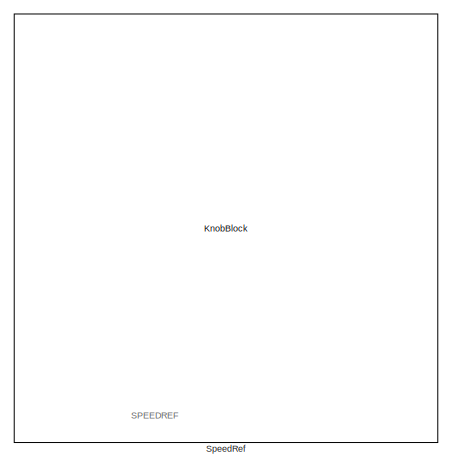
[diagram: root canvas - part 1/2, left side, full height]
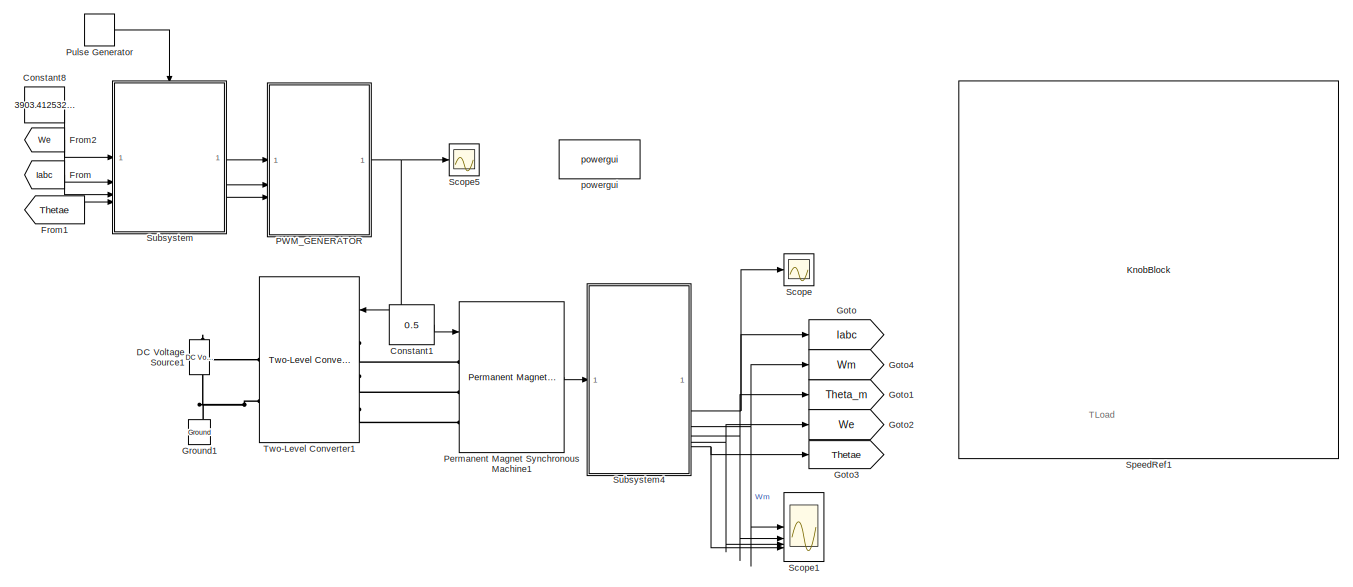
[diagram: root canvas - part 2/2, center side, full height]
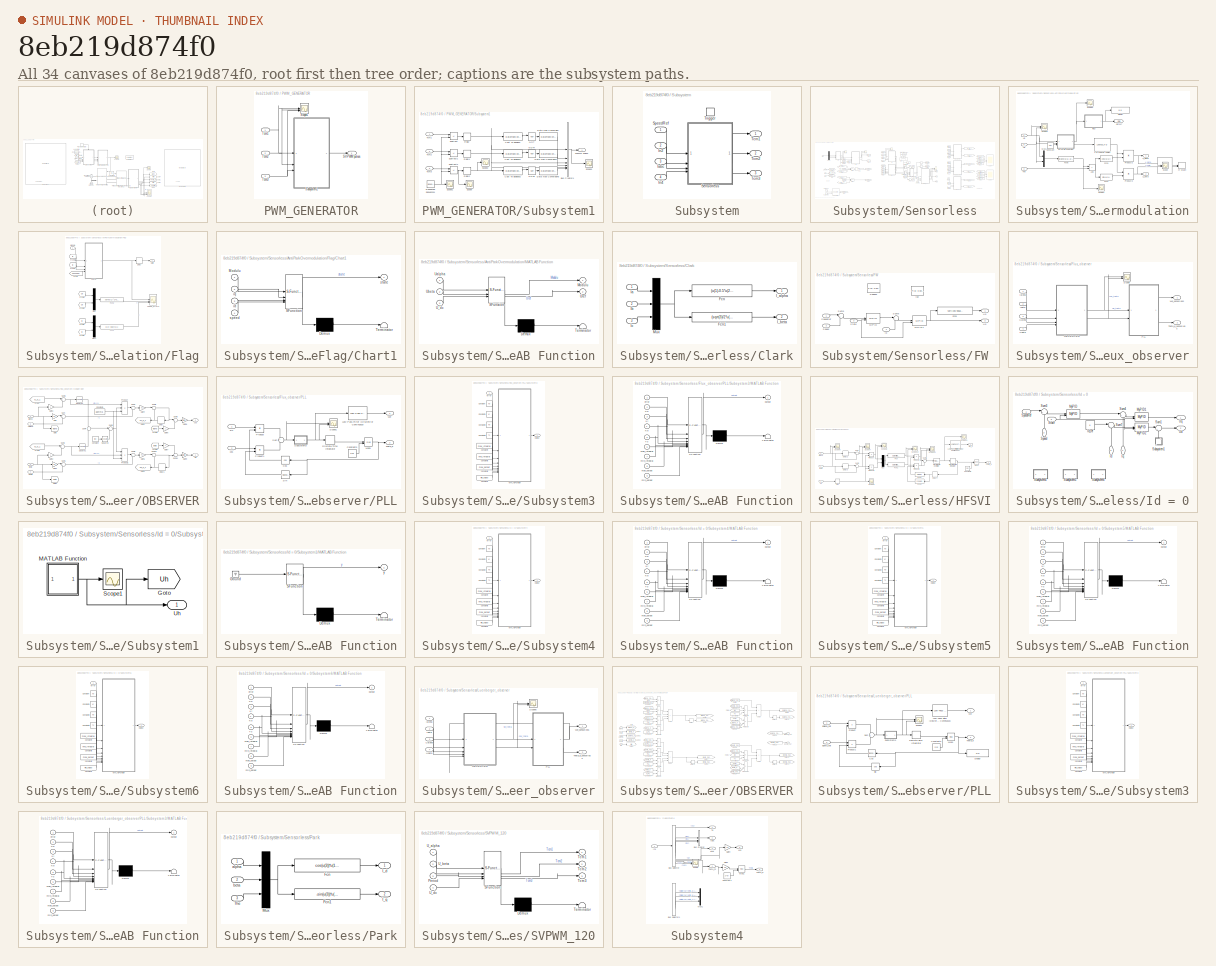
[diagram: thumbnail index - all 34 canvases of the model, root first then tree order]
MODEL slx_8eb219d874f0
KIND model
CONFIG AbsTol = auto
CONFIG EnableMultiTasking = off
CONFIG FixedStep = 1e-6
CONFIG MaxStep = auto
CONFIG MinStep = auto
CONFIG RelTol = 1e-3
CONFIG SampleTimeConstraint = Unconstrained
CONFIG SolverName = FixedStepDiscrete
CONFIG StartTime = 0.0
CONFIG StopTime = 0.5
BLOCK [Constant] Constant1
  Value = 0.5
BLOCK [Constant] Constant8
  Value = 3903.412532127328
BLOCK [Reference] DC Voltage Source1  REF=spsDCVoltageSourceLib/DC Voltage Source
  LibrarySourceBlock = sps_lib/Sources/DC Voltage Source
  SourceBlock = spsDCVoltageSourceLib/DC Voltage Source
  SourceType = DC Voltage Source
BLOCK [From] From
  GotoTag = Iabc
BLOCK [From] From1
  GotoTag = Thetae
  NameLocation = top
BLOCK [From] From2
  GotoTag = We
BLOCK [Goto] Goto
  GotoTag = Iabc
BLOCK [Goto] Goto1
  GotoTag = Theta_m
BLOCK [Goto] Goto2
  GotoTag = We
BLOCK [Goto] Goto3
  GotoTag = Thetae
BLOCK [Goto] Goto4
  GotoTag = Wm
BLOCK [Reference] Ground1  REF=spsGroundLib/Ground
  LibrarySourceBlock = sps_lib/Utilities/Ground
  NameLocation = right
  SourceBlock = spsGroundLib/Ground
  SourceType = Ground
BLOCK [SubSystem] PWM_GENERATOR
BLOCK [Outport] PWM_GENERATOR/SVPWM pulses
BLOCK [Scope] PWM_GENERATOR/Scope1
  Floating = off
  NumInputPorts = 3
  ScopeSpecificationString = Simulink.scopes.TimeScopeBlockCfg('CurrentConfiguration', extmgr.ConfigurationSet(extmgr.Configuration('Core','General UI',true),extmgr.Configuration('Core','Source UI',true),extmgr.Configuration('Sources','WiredSimulink',true,'DataLoggingVariableName','ScopeData1'),extmgr.Configuration('Visuals','Time Domain',true,'SerializedDisplays',{struct('MinYLimReal','1511.54926','MaxYLimReal','2146.34849',...<+3150ch>
BLOCK [SubSystem] PWM_GENERATOR/Subsystem1
BLOCK [BusCreator] PWM_GENERATOR/Subsystem1/Bus Creator1
  DisplayOption = bar
  InheritFromInputs = on
  Inputs = 6
BLOCK [DataTypeConversion] PWM_GENERATOR/Subsystem1/Cast To Boolean
  OutDataTypeStr = boolean
  RndMeth = Floor
  SaturateOnIntegerOverflow = off
BLOCK [DataTypeConversion] PWM_GENERATOR/Subsystem1/Cast To Boolean1
  OutDataTypeStr = boolean
  RndMeth = Floor
  SaturateOnIntegerOverflow = off
BLOCK [DataTypeConversion] PWM_GENERATOR/Subsystem1/Cast To Boolean2
  OutDataTypeStr = boolean
  RndMeth = Floor
  SaturateOnIntegerOverflow = off
BLOCK [DataTypeConversion] PWM_GENERATOR/Subsystem1/Data Type Conversion
  OutDataTypeStr = double
  RndMeth = Floor
  SaturateOnIntegerOverflow = off
BLOCK [DataTypeConversion] PWM_GENERATOR/Subsystem1/Data Type Conversion4
  OutDataTypeStr = double
  RndMeth = Floor
  SaturateOnIntegerOverflow = off
BLOCK [DataTypeConversion] PWM_GENERATOR/Subsystem1/Data Type Conversion5
  OutDataTypeStr = double
  RndMeth = Floor
  SaturateOnIntegerOverflow = off
BLOCK [Logic] PWM_GENERATOR/Subsystem1/NOT
  AllPortsSameDT = off
  IconShape = distinctive
  Operator = NOT
  OutDataTypeStr = boolean
BLOCK [Logic] PWM_GENERATOR/Subsystem1/NOT4
  AllPortsSameDT = off
  IconShape = distinctive
  Operator = NOT
  OutDataTypeStr = boolean
BLOCK [Logic] PWM_GENERATOR/Subsystem1/NOT5
  AllPortsSameDT = off
  IconShape = distinctive
  Operator = NOT
  OutDataTypeStr = boolean
BLOCK [Relay] PWM_GENERATOR/Subsystem1/Relay
BLOCK [Relay] PWM_GENERATOR/Subsystem1/Relay1
BLOCK [Relay] PWM_GENERATOR/Subsystem1/Relay2
BLOCK [Reference] PWM_GENERATOR/Subsystem1/Repeating Sequence1  REF=simulink/Sources/Repeating
Sequence
  SourceBlock = simulink/Sources/Repeating\nSequence
  SourceType = Repeating table
BLOCK [Outport] PWM_GENERATOR/Subsystem1/SVPWM pulses
BLOCK [Scope] PWM_GENERATOR/Subsystem1/Scope
  Floating = off
  NumInputPorts = 1
  ScopeSpecificationString = Simulink.scopes.TimeScopeBlockCfg('CurrentConfiguration', extmgr.ConfigurationSet(extmgr.Configuration('Core','General UI',true),extmgr.Configuration('Core','Source UI',true),extmgr.Configuration('Sources','WiredSimulink',true,'DataLoggingVariableName','ScopeData6'),extmgr.Configuration('Visuals','Time Domain',true,'SerializedDisplays',{struct('MinYLimReal','-0.71475','MaxYLimReal','0.71107','YLab...<+1547ch>
BLOCK [Scope] PWM_GENERATOR/Subsystem1/Scope1
  Floating = off
  NumInputPorts = 1
  ScopeSpecificationString = Simulink.scopes.TimeScopeBlockCfg('CurrentConfiguration', extmgr.ConfigurationSet(extmgr.Configuration('Core','General UI',true),extmgr.Configuration('Core','Source UI',true),extmgr.Configuration('Sources','WiredSimulink',true,'DataLoggingVariableName','ScopeData7'),extmgr.Configuration('Visuals','Time Domain',true,'SerializedDisplays',{struct('MinYLimReal','-531.24999','MaxYLimReal','4781.24988',...<+1608ch>
BLOCK [Scope] PWM_GENERATOR/Subsystem1/Scope2
  Floating = off
  NumInputPorts = 1
  ScopeSpecificationString = Simulink.scopes.TimeScopeBlockCfg('CurrentConfiguration', extmgr.ConfigurationSet(extmgr.Configuration('Core','General UI',true),extmgr.Configuration('Core','Source UI',true),extmgr.Configuration('Sources','WiredSimulink',true,'DataLoggingVariableName','ScopeData8'),extmgr.Configuration('Visuals','Time Domain',true,'SerializedDisplays',{struct('MinYLimReal','-0.0382','MaxYLimReal','1.0808','YLabel...<+1565ch>
BLOCK [Scope] PWM_GENERATOR/Subsystem1/Scope3
  Floating = off
  NumInputPorts = 1
  ScopeSpecificationString = Simulink.scopes.TimeScopeBlockCfg('CurrentConfiguration', extmgr.ConfigurationSet(extmgr.Configuration('Core','General UI',true),extmgr.Configuration('Core','Source UI',true),extmgr.Configuration('Sources','WiredSimulink',true,'DataLoggingVariableName','ScopeData5'),extmgr.Configuration('Visuals','Time Domain',true,'SerializedDisplays',{struct('MinYLimReal','-0.125','MaxYLimReal','1.125','YLabelRe...<+1767ch>
BLOCK [Sum] PWM_GENERATOR/Subsystem1/Subtract
  IconShape = rectangular
  Inputs = -+
BLOCK [Sum] PWM_GENERATOR/Subsystem1/Subtract1
  IconShape = rectangular
  Inputs = -+
BLOCK [Sum] PWM_GENERATOR/Subsystem1/Subtract2
  IconShape = rectangular
  Inputs = -+
BLOCK [Inport] PWM_GENERATOR/Subsystem1/Tcm1
BLOCK [Inport] PWM_GENERATOR/Subsystem1/Tcm2
  Port = 2
BLOCK [Inport] PWM_GENERATOR/Subsystem1/Tcm3
  Port = 3
BLOCK [Inport] PWM_GENERATOR/Tcm1
BLOCK [Inport] PWM_GENERATOR/Tcm2
  Port = 2
BLOCK [Inport] PWM_GENERATOR/Tcm3
  Port = 3
BLOCK [Reference] Permanent Magnet Synchronous Machine1  REF=spsPermanentMagnetSynchronousMachineLib/Permanent Magnet
Synchronous Machine
  LibrarySourceBlock = sps_lib/Electrical Machines/Permanent Magnet\nSynchronous Machine
  SourceBlock = spsPermanentMagnetSynchronousMachineLib/Permanent Magnet\nSynchronous Machine
  SourceType = Permanent Magnet Synchronous Machine
BLOCK [DiscretePulseGenerator] Pulse Generator
  Period = 0.0001
  PulseType = Time based
  PulseWidth = 50
BLOCK [Scope] Scope
  Floating = off
  NumInputPorts = 1
  ScopeSpecificationString = Simulink.scopes.TimeScopeBlockCfg('CurrentConfiguration', extmgr.ConfigurationSet(extmgr.Configuration('Core','General UI',true),extmgr.Configuration('Core','Source UI',true),extmgr.Configuration('Sources','WiredSimulink',true,'DataLoggingVariableName','ScopeData4'),extmgr.Configuration('Visuals','Time Domain',true,'SerializedDisplays',{struct('MinYLimReal','-3.77142','MaxYLimReal','3.75485','YLab...<+1935ch>
BLOCK [Scope] Scope1
  Floating = off
  NumInputPorts = 4
  ScopeSpecificationString = Simulink.scopes.TimeScopeBlockCfg('CurrentConfiguration', extmgr.ConfigurationSet(extmgr.Configuration('Core','General UI',true),extmgr.Configuration('Core','Source UI',true),extmgr.Configuration('Sources','WiredSimulink',true,'DataLoggingVariableName','ScopeData6'),extmgr.Configuration('Visuals','Time Domain',true,'SerializedDisplays',{struct('MinYLimReal','-19.28843','MaxYLimReal','172.92808','Y...<+3904ch>
BLOCK [Scope] Scope5
  Commented = on
  Floating = off
  NumInputPorts = 1
  ScopeSpecificationString = Simulink.scopes.TimeScopeBlockCfg('CurrentConfiguration', extmgr.ConfigurationSet(extmgr.Configuration('Core','General UI',true),extmgr.Configuration('Core','Source UI',true),extmgr.Configuration('Sources','WiredSimulink',true,'DataLoggingVariableName','ScopeData5'),extmgr.Configuration('Visuals','Time Domain',true,'SerializedDisplays',{struct('MinYLimReal','-0.125','MaxYLimReal','1.125','YLabelRe...<+3218ch>
BLOCK [KnobBlock] SpeedRef
  ScaleMax = 15000
  ScaleMin = -15000
BLOCK [KnobBlock] SpeedRef1
  ScaleMax = 5
  ScaleMin = -5
BLOCK [SubSystem] Subsystem
BLOCK [Inport] Subsystem/Iabc
  Port = 3
BLOCK [Inport] Subsystem/In2
  Port = 2
BLOCK [Inport] Subsystem/In4
  Port = 4
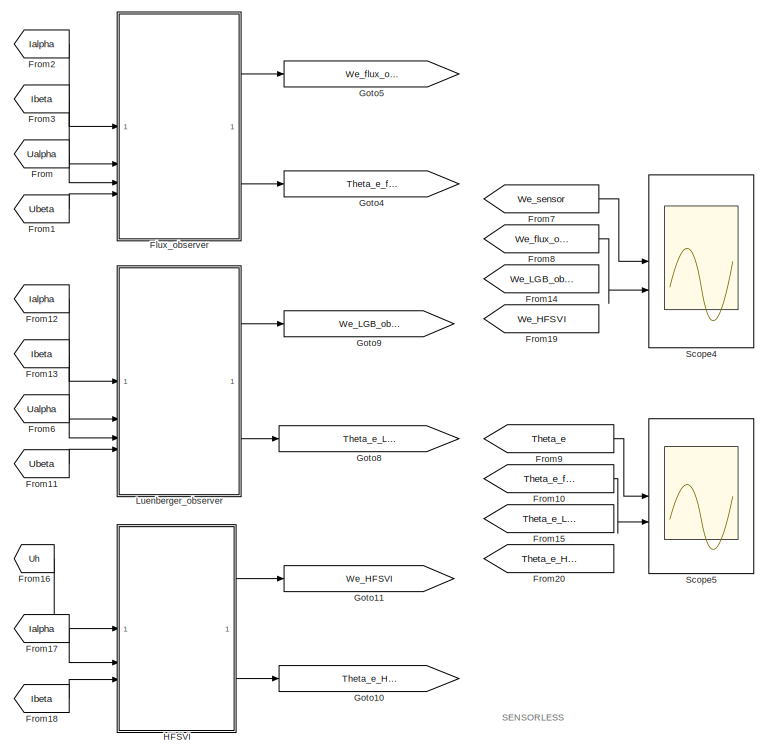
[diagram: Subsystem/Sensorless - part 1/3, right side, full height]
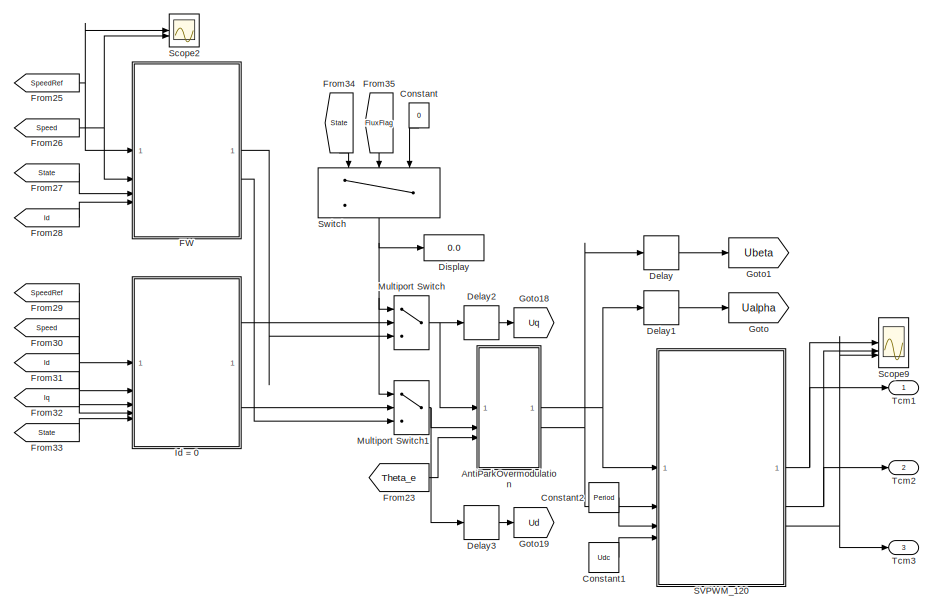
[diagram: Subsystem/Sensorless - part 2/3, central region]
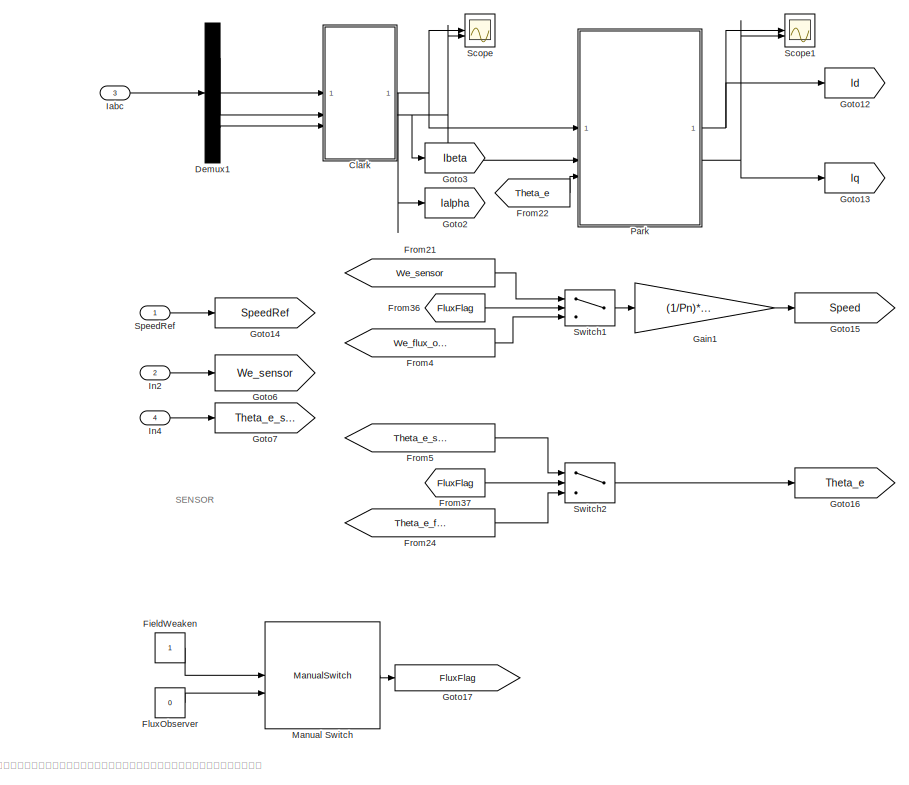
[diagram: Subsystem/Sensorless - part 3/3, left side, full height]
BLOCK [SubSystem] Subsystem/Sensorless
BLOCK [SubSystem] Subsystem/Sensorless/AntiParkOvermodulation
BLOCK [Lookup_n-D] Subsystem/Sensorless/AntiParkOvermodulation/1-D Lookup Table1
  BreakpointsForDimension1 = F1
  ExtrapMethod = Clip
  InputPortMap = u0
  InternalRulePriority = Speed
  NumberOfTableDimensions = 1
  RndMeth = Simplest
  Table = U_ref
  UseLastTableValue = on
BLOCK [Sum] Subsystem/Sensorless/AntiParkOvermodulation/Add
  IconShape = rectangular
BLOCK [Constant] Subsystem/Sensorless/AntiParkOvermodulation/Constant
  Value = Udc
BLOCK [Display] Subsystem/Sensorless/AntiParkOvermodulation/Display
  Decimation = 1
BLOCK [Fcn] Subsystem/Sensorless/AntiParkOvermodulation/Fcn3
  Expr = cos(u(1))
BLOCK [Fcn] Subsystem/Sensorless/AntiParkOvermodulation/Fcn4
  Expr = sin(u(1))
BLOCK [Fcn] Subsystem/Sensorless/AntiParkOvermodulation/Fcn5
  Expr = atan2(u(1),u(2))
BLOCK [SubSystem] Subsystem/Sensorless/AntiParkOvermodulation/Flag
BLOCK [SubSystem] Subsystem/Sensorless/AntiParkOvermodulation/Flag/Chart1
  ErrorFcn = Stateflow.Translate.translate
  PermitHierarchicalResolution = ExplicitOnly
  SFBlockType = Chart
  TreatAsAtomicUnit = on
BLOCK [Demux] Subsystem/Sensorless/AntiParkOvermodulation/Flag/Chart1/ Demux 
  Outputs = 1
BLOCK [S-Function] Subsystem/Sensorless/AntiParkOvermodulation/Flag/Chart1/ SFunction 
  EnableBusSupport = on
  FunctionName = sf_sfun
  Parameters = 1
  PortCounts = [4 2]
  SFcnIsStateOwnerBlock = off
  SFunctionDeploymentMode = off
  Tag = Stateflow S-Function 3
BLOCK [Terminator] Subsystem/Sensorless/AntiParkOvermodulation/Flag/Chart1/ Terminator 
BLOCK [Inport] Subsystem/Sensorless/AntiParkOvermodulation/Flag/Chart1/Modulu
BLOCK [Inport] Subsystem/Sensorless/AntiParkOvermodulation/Flag/Chart1/id
  Port = 3
BLOCK [Inport] Subsystem/Sensorless/AntiParkOvermodulation/Flag/Chart1/iq
  Port = 2
BLOCK [Inport] Subsystem/Sensorless/AntiParkOvermodulation/Flag/Chart1/speed
  Port = 4
BLOCK [Outport] Subsystem/Sensorless/AntiParkOvermodulation/Flag/Chart1/state
BLOCK [Delay] Subsystem/Sensorless/AntiParkOvermodulation/Flag/Delay
  DelayLength = 1
  InputPortMap = u0
  InputProcessing = Columns as channels (frame based)
BLOCK [Fcn] Subsystem/Sensorless/AntiParkOvermodulation/Flag/Fcn1
  Expr = u(2)-0.05*u(1)
BLOCK [Fcn] Subsystem/Sensorless/AntiParkOvermodulation/Flag/Fcn2
  Expr = sqrt(u(1)^2+u(2)^2)-F1(500)
BLOCK [From] Subsystem/Sensorless/AntiParkOvermodulation/Flag/From
  GotoTag = SpeedRef
  TagVisibility = global
BLOCK [From] Subsystem/Sensorless/AntiParkOvermodulation/Flag/From3
  GotoTag = Iq
  TagVisibility = global
BLOCK [From] Subsystem/Sensorless/AntiParkOvermodulation/Flag/From4
  GotoTag = Id
  TagVisibility = global
BLOCK [From] Subsystem/Sensorless/AntiParkOvermodulation/Flag/From5
  GotoTag = Iq
  TagVisibility = global
BLOCK [From] Subsystem/Sensorless/AntiParkOvermodulation/Flag/From6
  GotoTag = Id
  TagVisibility = global
BLOCK [From] Subsystem/Sensorless/AntiParkOvermodulation/Flag/From8
  GotoTag = Uq
  TagVisibility = global
BLOCK [From] Subsystem/Sensorless/AntiParkOvermodulation/Flag/From9
  GotoTag = Ud
  TagVisibility = global
BLOCK [Inport] Subsystem/Sensorless/AntiParkOvermodulation/Flag/Modulu
BLOCK [Mux] Subsystem/Sensorless/AntiParkOvermodulation/Flag/Mux
  DisplayOption = bar
  Inputs = 2
BLOCK [Mux] Subsystem/Sensorless/AntiParkOvermodulation/Flag/Mux1
  DisplayOption = bar
  Inputs = 2
BLOCK [Scope] Subsystem/Sensorless/AntiParkOvermodulation/Flag/speed_error3
  Floating = off
  NumInputPorts = 3
  ScopeSpecificationString = Simulink.scopes.TimeScopeBlockCfg('CurrentConfiguration', extmgr.ConfigurationSet(extmgr.Configuration('Core','General UI',true),extmgr.Configuration('Core','Source UI',true),extmgr.Configuration('Sources','WiredSimulink',true,'DataLoggingVariableName','ScopeData1'),extmgr.Configuration('Visuals','Time Domain',true,'SerializedDisplays',{struct('MinYLimReal','-0.125','MaxYLimReal','1.125','YLabelRe...<+3213ch>
BLOCK [Outport] Subsystem/Sensorless/AntiParkOvermodulation/Flag/state
BLOCK [Goto] Subsystem/Sensorless/AntiParkOvermodulation/Goto17
  GotoTag = State
  TagVisibility = global
BLOCK [SubSystem] Subsystem/Sensorless/AntiParkOvermodulation/MATLAB Function
  ErrorFcn = Stateflow.Translate.translate
  PermitHierarchicalResolution = ExplicitOnly
  SFBlockType = MATLAB Function
  TreatAsAtomicUnit = on
BLOCK [Demux] Subsystem/Sensorless/AntiParkOvermodulation/MATLAB Function/ Demux 
  Outputs = 1
BLOCK [S-Function] Subsystem/Sensorless/AntiParkOvermodulation/MATLAB Function/ SFunction 
  EnableBusSupport = on
  FunctionName = sf_sfun
  PortCounts = [3 3]
  SFcnIsStateOwnerBlock = off
  SFunctionDeploymentMode = off
  Tag = Stateflow S-Function 9
BLOCK [Terminator] Subsystem/Sensorless/AntiParkOvermodulation/MATLAB Function/ Terminator 
BLOCK [Outport] Subsystem/Sensorless/AntiParkOvermodulation/MATLAB Function/Modulu
BLOCK [Inport] Subsystem/Sensorless/AntiParkOvermodulation/MATLAB Function/U_dc
  Port = 3
BLOCK [Inport] Subsystem/Sensorless/AntiParkOvermodulation/MATLAB Function/Ualpha
BLOCK [Inport] Subsystem/Sensorless/AntiParkOvermodulation/MATLAB Function/Ubeta
  Port = 2
BLOCK [Outport] Subsystem/Sensorless/AntiParkOvermodulation/MATLAB Function/Uref
  Port = 2
BLOCK [Mux] Subsystem/Sensorless/AntiParkOvermodulation/Mux1
  DisplayOption = bar
  Inputs = 2
BLOCK [Product] Subsystem/Sensorless/AntiParkOvermodulation/Product2
BLOCK [Product] Subsystem/Sensorless/AntiParkOvermodulation/Product3
BLOCK [Scope] Subsystem/Sensorless/AntiParkOvermodulation/Scope
  Floating = off
  NumInputPorts = 2
  ScopeSpecificationString = Simulink.scopes.TimeScopeBlockCfg('CurrentConfiguration', extmgr.ConfigurationSet(extmgr.Configuration('Core','General UI',true),extmgr.Configuration('Core','Source UI',true),extmgr.Configuration('Sources','WiredSimulink',true,'DataLoggingVariableName','ScopeData3'),extmgr.Configuration('Visuals','Time Domain',true,'SerializedDisplays',{struct('MinYLimReal','-433.01265','MaxYLimReal','433.01264','...<+1574ch>
BLOCK [Scope] Subsystem/Sensorless/AntiParkOvermodulation/Scope1
  Floating = off
  NumInputPorts = 2
  ScopeSpecificationString = Simulink.scopes.TimeScopeBlockCfg('CurrentConfiguration', extmgr.ConfigurationSet(extmgr.Configuration('Core','General UI',true),extmgr.Configuration('Core','Source UI',true),extmgr.Configuration('Sources','WiredSimulink',true,'DataLoggingVariableName','ScopeData2'),extmgr.Configuration('Visuals','Time Domain',true,'SerializedDisplays',{struct('MinYLimReal','-0.33719','MaxYLimReal','3.03474','YLab...<+1626ch>
BLOCK [Scope] Subsystem/Sensorless/AntiParkOvermodulation/Scope2
  Floating = off
  NumInputPorts = 1
  ScopeSpecificationString = Simulink.scopes.TimeScopeBlockCfg('CurrentConfiguration', extmgr.ConfigurationSet(extmgr.Configuration('Core','General UI',true,'FigureColor',[1 1 1]),extmgr.Configuration('Core','Source UI',true),extmgr.Configuration('Sources','WiredSimulink',true,'DataLoggingVariableName','ScopeData3'),extmgr.Configuration('Visuals','Time Domain',true,'SerializedDisplays',{struct('MinYLimReal','-19.74077','MaxYL...<+2418ch>
BLOCK [Scope] Subsystem/Sensorless/AntiParkOvermodulation/Scope3
  Floating = off
  NumInputPorts = 2
  ScopeSpecificationString = Simulink.scopes.TimeScopeBlockCfg('CurrentConfiguration', extmgr.ConfigurationSet(extmgr.Configuration('Core','General UI',true,'FigureColor',[1 1 1]),extmgr.Configuration('Core','Source UI',true),extmgr.Configuration('Sources','WiredSimulink',true,'DataLoggingVariableName','ScopeData1'),extmgr.Configuration('Visuals','Time Domain',true,'SerializedDisplays',{struct('MinYLimReal','-62.5','MaxYLimRe...<+3108ch>
BLOCK [Inport] Subsystem/Sensorless/AntiParkOvermodulation/The
  NameLocation = left
  Port = 3
BLOCK [Outport] Subsystem/Sensorless/AntiParkOvermodulation/U_alpha
BLOCK [Outport] Subsystem/Sensorless/AntiParkOvermodulation/U_beta
  Port = 2
BLOCK [Inport] Subsystem/Sensorless/AntiParkOvermodulation/Ud
  Port = 2
BLOCK [Inport] Subsystem/Sensorless/AntiParkOvermodulation/Uq
BLOCK [Record] Subsystem/Sensorless/AntiParkOvermodulation/XY Graph
  CompatibilityTag = XY
  FileSettingsInternal = {"entries":[{"content":{"excelSettings":{"content":{},"type":"Streamout.ExcelSettings"}},"type":"Streamout.FileSettingStorage","uuid":""}],"packageUris":["http:\/\/schema.mathworks.com\/mf0\/streamout_blocks\/R2020a"],"version":"1.0"}
  Layout = [1 1]
  SignalsInternal = {"entries":[{"content":{"signals":[{"content":{"blockPath":[],"dimensions":[1],"domain":"","lineColor":"#22b573","lineWidth":2,"port":1,"signalID":1,"signalName":"U_alpha"},"type":"RecordBlkView.Signal","uuid":""},{"content":{"blockPath":[],"dimensions":[1],"domain":"","lineColor":"#0072bd","lineWidth":2,"port":2,"signalID":2,"signalName":"U_beta"},"type":"RecordBlkView.Signal","uuid":""}]},"type"...<+137ch>
  VisualizationBindings = {"xyplotplugin":{"info":[{"series":[],"subplotID":1}]}}
BLOCK [SubSystem] Subsystem/Sensorless/Clark
BLOCK [Fcn] Subsystem/Sensorless/Clark/Fcn
  Expr = (u(1)-0.5*u(2)-0.5*u(3))*2/3
BLOCK [Fcn] Subsystem/Sensorless/Clark/Fcn1
  Expr = (sqrt(3)/2*u(2)-sqrt(3)/2*u(3))*2/3
BLOCK [Outport] Subsystem/Sensorless/Clark/I_alpha
BLOCK [Outport] Subsystem/Sensorless/Clark/I_beta
  Port = 2
BLOCK [Inport] Subsystem/Sensorless/Clark/Ia
BLOCK [Inport] Subsystem/Sensorless/Clark/Ib
  Port = 2
BLOCK [Inport] Subsystem/Sensorless/Clark/Ic
  Port = 3
BLOCK [Mux] Subsystem/Sensorless/Clark/Mux
  DisplayOption = bar
  Inputs = 3
BLOCK [Constant] Subsystem/Sensorless/Constant
  NameLocation = left
  Value = 0
BLOCK [Constant] Subsystem/Sensorless/Constant1
  Value = Udc
BLOCK [Constant] Subsystem/Sensorless/Constant2
  Value = Period
BLOCK [Delay] Subsystem/Sensorless/Delay
  DelayLength = 1
  InputPortMap = u0
BLOCK [Delay] Subsystem/Sensorless/Delay1
  DelayLength = 1
  InputPortMap = u0
BLOCK [Delay] Subsystem/Sensorless/Delay2
  DelayLength = 1
  InputPortMap = u0
BLOCK [Delay] Subsystem/Sensorless/Delay3
  DelayLength = 1
  InputPortMap = u0
BLOCK [Demux] Subsystem/Sensorless/Demux1
  Outputs = 3
BLOCK [Display] Subsystem/Sensorless/Display
  Decimation = 1
BLOCK [SubSystem] Subsystem/Sensorless/FW
BLOCK [Fcn] Subsystem/Sensorless/FW/Fcn3
  Expr = sqrt(190.9858^2-u(1)^2)
BLOCK [Inport] Subsystem/Sensorless/FW/Id
  Port = 4
BLOCK [Reference] Subsystem/Sensorless/FW/Id2  REF=slpidlib/PID Controller
  Commented = on
  SourceBlock = slpidlib/PID Controller
  SourceType = PID 1dof
BLOCK [Reference] Subsystem/Sensorless/FW/MyPID  REF=My_library/MyPID
  SourceBlock = My_library/MyPID
BLOCK [Reference] Subsystem/Sensorless/FW/MyPID1  REF=My_library/MyPID
  SourceBlock = My_library/MyPID
BLOCK [Inport] Subsystem/Sensorless/FW/Speed
  Port = 2
BLOCK [Reference] Subsystem/Sensorless/FW/Speed2  REF=slpidlib/PID Controller
  Commented = on
  SourceBlock = slpidlib/PID Controller
  SourceType = PID 1dof
BLOCK [Inport] Subsystem/Sensorless/FW/SpeedRef
BLOCK [Inport] Subsystem/Sensorless/FW/State
  Port = 3
BLOCK [Sum] Subsystem/Sensorless/FW/Sum5
  Inputs = |+-
BLOCK [Sum] Subsystem/Sensorless/FW/Sum6
  Inputs = |+-
BLOCK [Outport] Subsystem/Sensorless/FW/Ud
  Port = 2
BLOCK [Outport] Subsystem/Sensorless/FW/Uq
BLOCK [Constant] Subsystem/Sensorless/FieldWeaken
BLOCK [Constant] Subsystem/Sensorless/FluxObserver
  Value = 0
BLOCK [SubSystem] Subsystem/Sensorless/Flux_observer
  TreatAsAtomicUnit = on
BLOCK [Inport] Subsystem/Sensorless/Flux_observer/Ialpha
BLOCK [Inport] Subsystem/Sensorless/Flux_observer/Ibeta
  Port = 2
BLOCK [SubSystem] Subsystem/Sensorless/Flux_observer/OBSERVER
BLOCK [Constant] Subsystem/Sensorless/Flux_observer/OBSERVER/Constant
  Value = flux
BLOCK [Constant] Subsystem/Sensorless/Flux_observer/OBSERVER/Constant1
  Value = gamma
BLOCK [Delay] Subsystem/Sensorless/Flux_observer/OBSERVER/Delay
  DelayLength = 1
  InputPortMap = u0
  InputProcessing = Columns as channels (frame based)
BLOCK [Delay] Subsystem/Sensorless/Flux_observer/OBSERVER/Delay1
  DelayLength = 1
  InputPortMap = u0
  InputProcessing = Columns as channels (frame based)
BLOCK [From] Subsystem/Sensorless/Flux_observer/OBSERVER/From
  GotoTag = x1_k_1
BLOCK [From] Subsystem/Sensorless/Flux_observer/OBSERVER/From1
  GotoTag = x2_k_1
BLOCK [From] Subsystem/Sensorless/Flux_observer/OBSERVER/From2
  GotoTag = Ialpha
BLOCK [From] Subsystem/Sensorless/Flux_observer/OBSERVER/From3
  GotoTag = Ibeta
BLOCK [Gain] Subsystem/Sensorless/Flux_observer/OBSERVER/Gain
  Gain = Rs
BLOCK [Gain] Subsystem/Sensorless/Flux_observer/OBSERVER/Gain1
  Gain = Rs
BLOCK [Gain] Subsystem/Sensorless/Flux_observer/OBSERVER/Gain2
  Gain = L
BLOCK [Gain] Subsystem/Sensorless/Flux_observer/OBSERVER/Gain3
  Gain = L
BLOCK [Gain] Subsystem/Sensorless/Flux_observer/OBSERVER/Gain4
  Gain = Ts
BLOCK [Gain] Subsystem/Sensorless/Flux_observer/OBSERVER/Gain5
  Gain = Ts
BLOCK [Gain] Subsystem/Sensorless/Flux_observer/OBSERVER/Gain6
  Gain = L
BLOCK [Gain] Subsystem/Sensorless/Flux_observer/OBSERVER/Gain7
  Gain = L
BLOCK [Gain] Subsystem/Sensorless/Flux_observer/OBSERVER/Gain8
  Gain = 1/flux
BLOCK [Gain] Subsystem/Sensorless/Flux_observer/OBSERVER/Gain9
  Gain = 1/flux
BLOCK [Goto] Subsystem/Sensorless/Flux_observer/OBSERVER/Goto
  GotoTag = Ialpha
BLOCK [Goto] Subsystem/Sensorless/Flux_observer/OBSERVER/Goto1
  GotoTag = Ibeta
BLOCK [Goto] Subsystem/Sensorless/Flux_observer/OBSERVER/Goto2
  GotoTag = x1_k_1
BLOCK [Goto] Subsystem/Sensorless/Flux_observer/OBSERVER/Goto3
  GotoTag = x2_k_1
BLOCK [Inport] Subsystem/Sensorless/Flux_observer/OBSERVER/Ialpha
BLOCK [Inport] Subsystem/Sensorless/Flux_observer/OBSERVER/Ibeta
  Port = 2
BLOCK [Product] Subsystem/Sensorless/Flux_observer/OBSERVER/Product
  Inputs = 3
BLOCK [Product] Subsystem/Sensorless/Flux_observer/OBSERVER/Product1
  Inputs = 3
BLOCK [Math] Subsystem/Sensorless/Flux_observer/OBSERVER/Square1
  Operator = square
BLOCK [Math] Subsystem/Sensorless/Flux_observer/OBSERVER/Square2
  Operator = square
BLOCK [Math] Subsystem/Sensorless/Flux_observer/OBSERVER/Square3
  Operator = square
BLOCK [Sum] Subsystem/Sensorless/Flux_observer/OBSERVER/Sum
  Inputs = |-+
BLOCK [Sum] Subsystem/Sensorless/Flux_observer/OBSERVER/Sum1
  Inputs = |-+
BLOCK [Sum] Subsystem/Sensorless/Flux_observer/OBSERVER/Sum10
  Inputs = |++
BLOCK [Sum] Subsystem/Sensorless/Flux_observer/OBSERVER/Sum11
  Inputs = -+|
BLOCK [Sum] Subsystem/Sensorless/Flux_observer/OBSERVER/Sum2
  Inputs = |+-
BLOCK [Sum] Subsystem/Sensorless/Flux_observer/OBSERVER/Sum3
  Inputs = |+-
BLOCK [Sum] Subsystem/Sensorless/Flux_observer/OBSERVER/Sum4
BLOCK [Sum] Subsystem/Sensorless/Flux_observer/OBSERVER/Sum5
  Inputs = |++
BLOCK [Sum] Subsystem/Sensorless/Flux_observer/OBSERVER/Sum6
  Inputs = |-+
BLOCK [Sum] Subsystem/Sensorless/Flux_observer/OBSERVER/Sum7
  Inputs = |++
BLOCK [Sum] Subsystem/Sensorless/Flux_observer/OBSERVER/Sum8
  Inputs = |++
BLOCK [Sum] Subsystem/Sensorless/Flux_observer/OBSERVER/Sum9
  Inputs = |+-
BLOCK [Inport] Subsystem/Sensorless/Flux_observer/OBSERVER/Ualpha
  Port = 3
BLOCK [Inport] Subsystem/Sensorless/Flux_observer/OBSERVER/Ubeta
  Port = 4
BLOCK [Outport] Subsystem/Sensorless/Flux_observer/OBSERVER/cos
  Port = 2
BLOCK [Outport] Subsystem/Sensorless/Flux_observer/OBSERVER/sin
BLOCK [SubSystem] Subsystem/Sensorless/Flux_observer/PLL
BLOCK [Constant] Subsystem/Sensorless/Flux_observer/PLL/Constant3
  Value = 2*pi
BLOCK [Trigonometry] Subsystem/Sensorless/Flux_observer/PLL/Cos
  ApproximationMethod = Lookup
  Operator = cos
BLOCK [DiscreteIntegrator] Subsystem/Sensorless/Flux_observer/PLL/Discrete-Time Integrator
  ICPrevOutput = DiscIntNeverNeededParam
  ICPrevScaledInput = DiscIntNeverNeededParam
  InitialConditionSetting = Auto
  SampleTime = -1
BLOCK [Reference] Subsystem/Sensorless/Flux_observer/PLL/Low-Pass Filter (Discrete or Continuous)  REF=eeGeneralControl/Low-Pass Filter
(Discrete or Continuous)
  SourceBlock = eeGeneralControl/Low-Pass Filter\n(Discrete or Continuous)
  SourceType = Low-Pass Filter (Discrete or Continuous)
BLOCK [Math] Subsystem/Sensorless/Flux_observer/PLL/Mod1
  Operator = mod
BLOCK [Product] Subsystem/Sensorless/Flux_observer/PLL/Product
BLOCK [Product] Subsystem/Sensorless/Flux_observer/PLL/Product1
BLOCK [Scope] Subsystem/Sensorless/Flux_observer/PLL/Scope1
  Floating = off
  NumInputPorts = 2
  ScopeSpecificationString = Simulink.scopes.TimeScopeBlockCfg('CurrentConfiguration', extmgr.ConfigurationSet(extmgr.Configuration('Core','General UI',true),extmgr.Configuration('Core','Source UI',true),extmgr.Configuration('Sources','WiredSimulink',true,'DataLoggingVariableName','ScopeData16'),extmgr.Configuration('Visuals','Time Domain',true,'SerializedDisplays',{struct('MinYLimReal','-0.12371','MaxYLimReal','0.7221','YLab...<+2292ch>
BLOCK [Trigonometry] Subsystem/Sensorless/Flux_observer/PLL/Sin
  ApproximationMethod = Lookup
BLOCK [SubSystem] Subsystem/Sensorless/Flux_observer/PLL/Subsystem3
BLOCK [Constant] Subsystem/Sensorless/Flux_observer/PLL/Subsystem3/Constant
  Value = Kp
BLOCK [Constant] Subsystem/Sensorless/Flux_observer/PLL/Subsystem3/Constant1
  Value = Ki
BLOCK [Constant] Subsystem/Sensorless/Flux_observer/PLL/Subsystem3/Constant2
  Value = Kd
BLOCK [Constant] Subsystem/Sensorless/Flux_observer/PLL/Subsystem3/Constant3
  Value = Ts
BLOCK [Constant] Subsystem/Sensorless/Flux_observer/PLL/Subsystem3/Constant4
  Value = max_Integral
BLOCK [Constant] Subsystem/Sensorless/Flux_observer/PLL/Subsystem3/Constant5
  Value = min_Integral
BLOCK [Constant] Subsystem/Sensorless/Flux_observer/PLL/Subsystem3/Constant6
  Value = max_output
BLOCK [Constant] Subsystem/Sensorless/Flux_observer/PLL/Subsystem3/Constant7
  Value = min_output
BLOCK [SubSystem] Subsystem/Sensorless/Flux_observer/PLL/Subsystem3/MATLAB Function
  ErrorFcn = Stateflow.Translate.translate
  PermitHierarchicalResolution = ExplicitOnly
  SFBlockType = MATLAB Function
  TreatAsAtomicUnit = on
BLOCK [Demux] Subsystem/Sensorless/Flux_observer/PLL/Subsystem3/MATLAB Function/ Demux 
  Outputs = 1
BLOCK [S-Function] Subsystem/Sensorless/Flux_observer/PLL/Subsystem3/MATLAB Function/ SFunction 
  EnableBusSupport = on
  FunctionName = sf_sfun
  PortCounts = [9 2]
  SFcnIsStateOwnerBlock = off
  SFunctionDeploymentMode = off
  Tag = Stateflow S-Function 4
BLOCK [Terminator] Subsystem/Sensorless/Flux_observer/PLL/Subsystem3/MATLAB Function/ Terminator 
BLOCK [Inport] Subsystem/Sensorless/Flux_observer/PLL/Subsystem3/MATLAB Function/Kd
  Port = 4
BLOCK [Inport] Subsystem/Sensorless/Flux_observer/PLL/Subsystem3/MATLAB Function/Ki
  Port = 3
BLOCK [Inport] Subsystem/Sensorless/Flux_observer/PLL/Subsystem3/MATLAB Function/Kp
  Port = 2
BLOCK [Inport] Subsystem/Sensorless/Flux_observer/PLL/Subsystem3/MATLAB Function/Ts
  Port = 5
BLOCK [Inport] Subsystem/Sensorless/Flux_observer/PLL/Subsystem3/MATLAB Function/error
BLOCK [Inport] Subsystem/Sensorless/Flux_observer/PLL/Subsystem3/MATLAB Function/max_Integral
  Port = 6
BLOCK [Inport] Subsystem/Sensorless/Flux_observer/PLL/Subsystem3/MATLAB Function/max_output
  Port = 8
BLOCK [Inport] Subsystem/Sensorless/Flux_observer/PLL/Subsystem3/MATLAB Function/min_Integral
  Port = 7
BLOCK [Inport] Subsystem/Sensorless/Flux_observer/PLL/Subsystem3/MATLAB Function/min_output
  Port = 9
BLOCK [Outport] Subsystem/Sensorless/Flux_observer/PLL/Subsystem3/MATLAB Function/output
BLOCK [Inport] Subsystem/Sensorless/Flux_observer/PLL/Subsystem3/error
BLOCK [Outport] Subsystem/Sensorless/Flux_observer/PLL/Subsystem3/output
BLOCK [Sum] Subsystem/Sensorless/Flux_observer/PLL/Sum
  Inputs = +-
BLOCK [Outport] Subsystem/Sensorless/Flux_observer/PLL/Theta_e
  Port = 2
BLOCK [Outport] Subsystem/Sensorless/Flux_observer/PLL/We
BLOCK [Inport] Subsystem/Sensorless/Flux_observer/PLL/cos
  Port = 2
BLOCK [Inport] Subsystem/Sensorless/Flux_observer/PLL/sin
BLOCK [Scope] Subsystem/Sensorless/Flux_observer/Scope
  Floating = off
  NumInputPorts = 2
  ScopeSpecificationString = Simulink.scopes.TimeScopeBlockCfg('CurrentConfiguration', extmgr.ConfigurationSet(extmgr.Configuration('Core','General UI',true,'FigureColor',[1 1 1]),extmgr.Configuration('Core','Source UI',true),extmgr.Configuration('Sources','WiredSimulink',true,'DataLoggingVariableName','ScopeData3'),extmgr.Configuration('Visuals','Time Domain',true,'SerializedDisplays',{struct('MinYLimReal','-1.08045','MaxYLi...<+2398ch>
BLOCK [Outport] Subsystem/Sensorless/Flux_observer/Theta_e_sensorless
  Port = 2
BLOCK [Inport] Subsystem/Sensorless/Flux_observer/Ualpha
  Port = 3
BLOCK [Inport] Subsystem/Sensorless/Flux_observer/Ubeta
  Port = 4
BLOCK [Outport] Subsystem/Sensorless/Flux_observer/We_sensorless
BLOCK [From] Subsystem/Sensorless/From
  GotoTag = Ualpha
BLOCK [From] Subsystem/Sensorless/From1
  GotoTag = Ubeta
BLOCK [From] Subsystem/Sensorless/From10
  GotoTag = Theta_e_flux_observer
BLOCK [From] Subsystem/Sensorless/From11
  Commented = on
  GotoTag = Ubeta
BLOCK [From] Subsystem/Sensorless/From12
  Commented = on
  GotoTag = Ialpha
BLOCK [From] Subsystem/Sensorless/From13
  Commented = on
  GotoTag = Ibeta
BLOCK [From] Subsystem/Sensorless/From14
  Commented = on
  GotoTag = We_LGB_observer
BLOCK [From] Subsystem/Sensorless/From15
  Commented = on
  GotoTag = Theta_e_LGB_observer
BLOCK [From] Subsystem/Sensorless/From16
  Commented = on
  GotoTag = Uh
  TagVisibility = global
BLOCK [From] Subsystem/Sensorless/From17
  Commented = on
  GotoTag = Ialpha
BLOCK [From] Subsystem/Sensorless/From18
  Commented = on
  GotoTag = Ibeta
BLOCK [From] Subsystem/Sensorless/From19
  Commented = on
  GotoTag = We_HFSVI
BLOCK [From] Subsystem/Sensorless/From2
  GotoTag = Ialpha
BLOCK [From] Subsystem/Sensorless/From20
  Commented = on
  GotoTag = Theta_e_HFSVI
BLOCK [From] Subsystem/Sensorless/From21
  GotoTag = We_sensor
BLOCK [From] Subsystem/Sensorless/From22
  GotoTag = Theta_e
  TagVisibility = global
BLOCK [From] Subsystem/Sensorless/From23
  GotoTag = Theta_e
  NameLocation = top
  TagVisibility = global
BLOCK [From] Subsystem/Sensorless/From24
  GotoTag = Theta_e_flux_observer
BLOCK [From] Subsystem/Sensorless/From25
  GotoTag = SpeedRef
  TagVisibility = global
BLOCK [From] Subsystem/Sensorless/From26
  GotoTag = Speed
  TagVisibility = global
BLOCK [From] Subsystem/Sensorless/From27
  GotoTag = State
  TagVisibility = global
BLOCK [From] Subsystem/Sensorless/From28
  GotoTag = Id
  TagVisibility = global
BLOCK [From] Subsystem/Sensorless/From29
  GotoTag = SpeedRef
  TagVisibility = global
BLOCK [From] Subsystem/Sensorless/From3
  GotoTag = Ibeta
BLOCK [From] Subsystem/Sensorless/From30
  GotoTag = Speed
  TagVisibility = global
BLOCK [From] Subsystem/Sensorless/From31
  GotoTag = Id
  TagVisibility = global
BLOCK [From] Subsystem/Sensorless/From32
  GotoTag = Iq
  TagVisibility = global
BLOCK [From] Subsystem/Sensorless/From33
  GotoTag = State
  TagVisibility = global
BLOCK [From] Subsystem/Sensorless/From34
  GotoTag = State
  NameLocation = left
  TagVisibility = global
BLOCK [From] Subsystem/Sensorless/From35
  GotoTag = FluxFlag
  NameLocation = left
BLOCK [From] Subsystem/Sensorless/From36
  GotoTag = FluxFlag
BLOCK [From] Subsystem/Sensorless/From37
  GotoTag = FluxFlag
BLOCK [From] Subsystem/Sensorless/From4
  GotoTag = We_flux_observer
BLOCK [From] Subsystem/Sensorless/From5
  GotoTag = Theta_e_sensor
BLOCK [From] Subsystem/Sensorless/From6
  Commented = on
  GotoTag = Ualpha
BLOCK [From] Subsystem/Sensorless/From7
  GotoTag = We_sensor
BLOCK [From] Subsystem/Sensorless/From8
  GotoTag = We_flux_observer
BLOCK [From] Subsystem/Sensorless/From9
  GotoTag = Theta_e
  TagVisibility = global
BLOCK [Gain] Subsystem/Sensorless/Gain1
  Gain = (1/Pn)*(30/pi)
BLOCK [Goto] Subsystem/Sensorless/Goto
  GotoTag = Ualpha
BLOCK [Goto] Subsystem/Sensorless/Goto1
  GotoTag = Ubeta
BLOCK [Goto] Subsystem/Sensorless/Goto10
  Commented = on
  GotoTag = Theta_e_HFSVI
BLOCK [Goto] Subsystem/Sensorless/Goto11
  Commented = on
  GotoTag = We_HFSVI
BLOCK [Goto] Subsystem/Sensorless/Goto12
  GotoTag = Id
  TagVisibility = global
BLOCK [Goto] Subsystem/Sensorless/Goto13
  GotoTag = Iq
  TagVisibility = global
BLOCK [Goto] Subsystem/Sensorless/Goto14
  GotoTag = SpeedRef
  TagVisibility = global
BLOCK [Goto] Subsystem/Sensorless/Goto15
  GotoTag = Speed
  TagVisibility = global
BLOCK [Goto] Subsystem/Sensorless/Goto16
  GotoTag = Theta_e
  TagVisibility = global
BLOCK [Goto] Subsystem/Sensorless/Goto17
  GotoTag = FluxFlag
BLOCK [Goto] Subsystem/Sensorless/Goto18
  GotoTag = Uq
  TagVisibility = global
BLOCK [Goto] Subsystem/Sensorless/Goto19
  GotoTag = Ud
  TagVisibility = global
BLOCK [Goto] Subsystem/Sensorless/Goto2
  GotoTag = Ialpha
BLOCK [Goto] Subsystem/Sensorless/Goto3
  GotoTag = Ibeta
BLOCK [Goto] Subsystem/Sensorless/Goto4
  GotoTag = Theta_e_flux_observer
BLOCK [Goto] Subsystem/Sensorless/Goto5
  GotoTag = We_flux_observer
BLOCK [Goto] Subsystem/Sensorless/Goto6
  GotoTag = We_sensor
BLOCK [Goto] Subsystem/Sensorless/Goto7
  GotoTag = Theta_e_sensor
BLOCK [Goto] Subsystem/Sensorless/Goto8
  Commented = on
  GotoTag = Theta_e_LGB_observer
BLOCK [Goto] Subsystem/Sensorless/Goto9
  Commented = on
  GotoTag = We_LGB_observer
BLOCK [SubSystem] Subsystem/Sensorless/HFSVI
  Commented = on
BLOCK [Constant] Subsystem/Sensorless/HFSVI/Constant3
  Value = 2*pi
BLOCK [Delay] Subsystem/Sensorless/HFSVI/Delay2
  DelayLength = 1
  InitialCondition = 0
  InputPortMap = u0
BLOCK [Delay] Subsystem/Sensorless/HFSVI/Delay3
  DelayLength = 1
  InitialCondition = 0
  InputPortMap = u0
BLOCK [Delay] Subsystem/Sensorless/HFSVI/Delay4
  DelayLength = 1
  InitialCondition = 0
  InputPortMap = u0
  NameLocation = top
BLOCK [Reference] Subsystem/Sensorless/HFSVI/Discrete PID Controller  REF=slpidlib/PID Controller
  SourceBlock = slpidlib/PID Controller
  SourceType = PID 1dof
BLOCK [DiscreteIntegrator] Subsystem/Sensorless/HFSVI/Discrete-Time Integrator
  ICPrevOutput = DiscIntNeverNeededParam
  ICPrevScaledInput = DiscIntNeverNeededParam
  InitialConditionSetting = Auto
  SampleTime = -1
BLOCK [Fcn] Subsystem/Sensorless/HFSVI/Fcn
  Expr = u(1)/sqrt(u(1)^2+u(2)^2)
BLOCK [Fcn] Subsystem/Sensorless/HFSVI/Fcn1
  Expr = u(2)/sqrt(u(1)^2+u(2)^2)
BLOCK [Fcn] Subsystem/Sensorless/HFSVI/Fcn2
  Expr = sin(u(1))
  NameLocation = top
BLOCK [Fcn] Subsystem/Sensorless/HFSVI/Fcn3
  Expr = cos(u(1))
  NameLocation = top
BLOCK [Inport] Subsystem/Sensorless/HFSVI/Ialpha
  Port = 2
BLOCK [Inport] Subsystem/Sensorless/HFSVI/Ibeta
  Port = 3
BLOCK [Reference] Subsystem/Sensorless/HFSVI/Low-Pass Filter (Discrete or Continuous)  REF=eeGeneralControl/Low-Pass Filter
(Discrete or Continuous)
  SourceBlock = eeGeneralControl/Low-Pass Filter\n(Discrete or Continuous)
  SourceType = Low-Pass Filter (Discrete or Continuous)
BLOCK [Math] Subsystem/Sensorless/HFSVI/Mod1
  Operator = mod
BLOCK [Mux] Subsystem/Sensorless/HFSVI/Mux
  DisplayOption = bar
  Inputs = 2
BLOCK [Product] Subsystem/Sensorless/HFSVI/Product
BLOCK [Product] Subsystem/Sensorless/HFSVI/Product1
BLOCK [Product] Subsystem/Sensorless/HFSVI/Product2
BLOCK [Product] Subsystem/Sensorless/HFSVI/Product3
BLOCK [Scope] Subsystem/Sensorless/HFSVI/Scope10
  Floating = off
  NumInputPorts = 2
  ScopeSpecificationString = Simulink.scopes.TimeScopeBlockCfg('CurrentConfiguration', extmgr.ConfigurationSet(extmgr.Configuration('Core','General UI',true),extmgr.Configuration('Core','Source UI',true),extmgr.Configuration('Sources','WiredSimulink',true,'DataLoggingVariableName','ScopeData1'),extmgr.Configuration('Visuals','Time Domain',true,'SerializedDisplays',{struct('MinYLimReal','-1.25','MaxYLimReal','1.25','YLabelReal...<+1536ch>
BLOCK [Scope] Subsystem/Sensorless/HFSVI/Scope11
  Floating = off
  NumInputPorts = 1
  ScopeSpecificationString = Simulink.scopes.TimeScopeBlockCfg('CurrentConfiguration', extmgr.ConfigurationSet(extmgr.Configuration('Core','General UI',true),extmgr.Configuration('Core','Source UI',true),extmgr.Configuration('Sources','WiredSimulink',true,'DataLoggingVariableName','ScopeData2'),extmgr.Configuration('Visuals','Time Domain',true,'SerializedDisplays',{struct('MinYLimReal','-623.16679','MaxYLimReal','1954.6263','...<+1537ch>
BLOCK [Scope] Subsystem/Sensorless/HFSVI/Scope12
  Floating = off
  NumInputPorts = 3
  ScopeSpecificationString = Simulink.scopes.TimeScopeBlockCfg('CurrentConfiguration', extmgr.ConfigurationSet(extmgr.Configuration('Core','General UI',true),extmgr.Configuration('Core','Source UI',true),extmgr.Configuration('Sources','WiredSimulink',true,'DataLoggingVariableName','ScopeData3'),extmgr.Configuration('Visuals','Time Domain',true,'SerializedDisplays',{struct('MinYLimReal','-1.25','MaxYLimReal','1.25','YLabelReal...<+1552ch>
BLOCK [Scope] Subsystem/Sensorless/HFSVI/Scope6
  Floating = off
  NumInputPorts = 2
  ScopeSpecificationString = Simulink.scopes.TimeScopeBlockCfg('CurrentConfiguration', extmgr.ConfigurationSet(extmgr.Configuration('Core','General UI',true),extmgr.Configuration('Core','Source UI',true),extmgr.Configuration('Sources','WiredSimulink',true,'DataLoggingVariableName','ScopeData4'),extmgr.Configuration('Visuals','Time Domain',true,'SerializedDisplays',{struct('MinYLimReal','-12.36019','MaxYLimReal','35.21612','YL...<+1877ch>
BLOCK [Scope] Subsystem/Sensorless/HFSVI/Scope7
  Floating = off
  NumInputPorts = 2
  ScopeSpecificationString = Simulink.scopes.TimeScopeBlockCfg('CurrentConfiguration', extmgr.ConfigurationSet(extmgr.Configuration('Core','General UI',true),extmgr.Configuration('Core','Source UI',true),extmgr.Configuration('Sources','WiredSimulink',true,'DataLoggingVariableName','ScopeData5'),extmgr.Configuration('Visuals','Time Domain',true,'SerializedDisplays',{struct('MinYLimReal','-2.36472','MaxYLimReal','2.53221','YLab...<+1554ch>
BLOCK [Scope] Subsystem/Sensorless/HFSVI/Scope8
  Floating = off
  NumInputPorts = 2
  ScopeSpecificationString = Simulink.scopes.TimeScopeBlockCfg('CurrentConfiguration', extmgr.ConfigurationSet(extmgr.Configuration('Core','General UI',true),extmgr.Configuration('Core','Source UI',true),extmgr.Configuration('Sources','WiredSimulink',true,'DataLoggingVariableName','ScopeData6'),extmgr.Configuration('Visuals','Time Domain',true,'SerializedDisplays',{struct('MinYLimReal','-2.71969','MaxYLimReal','2.93555','YLab...<+1879ch>
BLOCK [Scope] Subsystem/Sensorless/HFSVI/Scope9
  Floating = off
  NumInputPorts = 1
  ScopeSpecificationString = Simulink.scopes.TimeScopeBlockCfg('CurrentConfiguration', extmgr.ConfigurationSet(extmgr.Configuration('Core','General UI',true),extmgr.Configuration('Core','Source UI',true),extmgr.Configuration('Sources','WiredSimulink',true,'DataLoggingVariableName','ScopeData7'),extmgr.Configuration('Visuals','Time Domain',true,'SerializedDisplays',{struct('MinYLimReal','-1.25','MaxYLimReal','1.25','YLabelReal...<+1432ch>
BLOCK [Signum] Subsystem/Sensorless/HFSVI/Sign
BLOCK [Sum] Subsystem/Sensorless/HFSVI/Sum
  Inputs = |-+
BLOCK [Sum] Subsystem/Sensorless/HFSVI/Sum2
  Inputs = |-+
BLOCK [Sum] Subsystem/Sensorless/HFSVI/Sum5
  Inputs = +-
BLOCK [Outport] Subsystem/Sensorless/HFSVI/Theta_e
  Port = 2
BLOCK [Inport] Subsystem/Sensorless/HFSVI/Uh
BLOCK [Outport] Subsystem/Sensorless/HFSVI/We_e
BLOCK [Inport] Subsystem/Sensorless/Iabc
  Port = 3
BLOCK [SubSystem] Subsystem/Sensorless/Id = 0
BLOCK [Inport] Subsystem/Sensorless/Id = 0/Id
  NameLocation = right
  Port = 3
BLOCK [Constant] Subsystem/Sensorless/Id = 0/Id_ref
  Value = 0
BLOCK [Inport] Subsystem/Sensorless/Id = 0/Iq
  NameLocation = right
  Port = 4
BLOCK [Reference] Subsystem/Sensorless/Id = 0/MyPID  REF=My_library/MyPID
  SourceBlock = My_library/MyPID
BLOCK [Reference] Subsystem/Sensorless/Id = 0/MyPID1  REF=My_library/MyPID
  SourceBlock = My_library/MyPID
BLOCK [Reference] Subsystem/Sensorless/Id = 0/MyPID2  REF=My_library/MyPID
  SourceBlock = My_library/MyPID
BLOCK [Inport] Subsystem/Sensorless/Id = 0/Speed
  NameLocation = right
  Port = 2
BLOCK [Inport] Subsystem/Sensorless/Id = 0/SpeedRef
BLOCK [Inport] Subsystem/Sensorless/Id = 0/State
  Port = 5
BLOCK [SubSystem] Subsystem/Sensorless/Id = 0/Subsystem1
  Commented = on
  NameLocation = right
BLOCK [Goto] Subsystem/Sensorless/Id = 0/Subsystem1/Goto
  GotoTag = Uh
  TagVisibility = global
BLOCK [SubSystem] Subsystem/Sensorless/Id = 0/Subsystem1/MATLAB Function
  ErrorFcn = Stateflow.Translate.translate
  PermitHierarchicalResolution = ExplicitOnly
  SFBlockType = MATLAB Function
  TreatAsAtomicUnit = on
BLOCK [Demux] Subsystem/Sensorless/Id = 0/Subsystem1/MATLAB Function/ Demux 
  Outputs = 1
BLOCK [Ground] Subsystem/Sensorless/Id = 0/Subsystem1/MATLAB Function/ Ground 
BLOCK [S-Function] Subsystem/Sensorless/Id = 0/Subsystem1/MATLAB Function/ SFunction 
  EnableBusSupport = on
  FunctionName = sf_sfun
  PortCounts = [1 2]
  SFcnIsStateOwnerBlock = off
  SFunctionDeploymentMode = off
  Tag = Stateflow S-Function 6
BLOCK [Terminator] Subsystem/Sensorless/Id = 0/Subsystem1/MATLAB Function/ Terminator 
BLOCK [Outport] Subsystem/Sensorless/Id = 0/Subsystem1/MATLAB Function/y
BLOCK [Scope] Subsystem/Sensorless/Id = 0/Subsystem1/Scope1
  Floating = off
  NumInputPorts = 1
  ScopeSpecificationString = Simulink.scopes.TimeScopeBlockCfg('CurrentConfiguration', extmgr.ConfigurationSet(extmgr.Configuration('Core','General UI',true),extmgr.Configuration('Core','Source UI',true),extmgr.Configuration('Sources','WiredSimulink',true,'DataLoggingVariableName','ScopeData2'),extmgr.Configuration('Visuals','Time Domain',true,'SerializedDisplays',{struct('MinYLimReal','-37.19193','MaxYLimReal','36.79985','YL...<+1540ch>
BLOCK [Outport] Subsystem/Sensorless/Id = 0/Subsystem1/Uh
BLOCK [SubSystem] Subsystem/Sensorless/Id = 0/Subsystem4
  Commented = on
BLOCK [Constant] Subsystem/Sensorless/Id = 0/Subsystem4/Constant
  Value = Kp
BLOCK [Constant] Subsystem/Sensorless/Id = 0/Subsystem4/Constant1
  Value = Ki
BLOCK [Constant] Subsystem/Sensorless/Id = 0/Subsystem4/Constant2
  Value = Kd
BLOCK [Constant] Subsystem/Sensorless/Id = 0/Subsystem4/Constant3
  Value = Ts
BLOCK [Constant] Subsystem/Sensorless/Id = 0/Subsystem4/Constant4
  Value = max_Integral
BLOCK [Constant] Subsystem/Sensorless/Id = 0/Subsystem4/Constant5
  Value = min_Integral
BLOCK [Constant] Subsystem/Sensorless/Id = 0/Subsystem4/Constant6
  Value = max_output
BLOCK [Constant] Subsystem/Sensorless/Id = 0/Subsystem4/Constant7
  Value = min_output
BLOCK [SubSystem] Subsystem/Sensorless/Id = 0/Subsystem4/MATLAB Function
  ErrorFcn = Stateflow.Translate.translate
  PermitHierarchicalResolution = ExplicitOnly
  SFBlockType = MATLAB Function
  TreatAsAtomicUnit = on
BLOCK [Demux] Subsystem/Sensorless/Id = 0/Subsystem4/MATLAB Function/ Demux 
  Outputs = 1
BLOCK [S-Function] Subsystem/Sensorless/Id = 0/Subsystem4/MATLAB Function/ SFunction 
  EnableBusSupport = on
  FunctionName = sf_sfun
  PortCounts = [9 2]
  SFcnIsStateOwnerBlock = off
  SFunctionDeploymentMode = off
  Tag = Stateflow S-Function 8
BLOCK [Terminator] Subsystem/Sensorless/Id = 0/Subsystem4/MATLAB Function/ Terminator 
BLOCK [Inport] Subsystem/Sensorless/Id = 0/Subsystem4/MATLAB Function/Kd
  Port = 4
BLOCK [Inport] Subsystem/Sensorless/Id = 0/Subsystem4/MATLAB Function/Ki
  Port = 3
BLOCK [Inport] Subsystem/Sensorless/Id = 0/Subsystem4/MATLAB Function/Kp
  Port = 2
BLOCK [Inport] Subsystem/Sensorless/Id = 0/Subsystem4/MATLAB Function/Ts
  Port = 5
BLOCK [Inport] Subsystem/Sensorless/Id = 0/Subsystem4/MATLAB Function/error
BLOCK [Inport] Subsystem/Sensorless/Id = 0/Subsystem4/MATLAB Function/max_Integral
  Port = 6
BLOCK [Inport] Subsystem/Sensorless/Id = 0/Subsystem4/MATLAB Function/max_output
  Port = 8
BLOCK [Inport] Subsystem/Sensorless/Id = 0/Subsystem4/MATLAB Function/min_Integral
  Port = 7
BLOCK [Inport] Subsystem/Sensorless/Id = 0/Subsystem4/MATLAB Function/min_output
  Port = 9
BLOCK [Outport] Subsystem/Sensorless/Id = 0/Subsystem4/MATLAB Function/output
BLOCK [Inport] Subsystem/Sensorless/Id = 0/Subsystem4/error
BLOCK [Outport] Subsystem/Sensorless/Id = 0/Subsystem4/output
BLOCK [SubSystem] Subsystem/Sensorless/Id = 0/Subsystem5
  Commented = on
BLOCK [Constant] Subsystem/Sensorless/Id = 0/Subsystem5/Constant
  Value = Kp
BLOCK [Constant] Subsystem/Sensorless/Id = 0/Subsystem5/Constant1
  Value = Ki
BLOCK [Constant] Subsystem/Sensorless/Id = 0/Subsystem5/Constant2
  Value = Kd
BLOCK [Constant] Subsystem/Sensorless/Id = 0/Subsystem5/Constant3
  Value = Ts
BLOCK [Constant] Subsystem/Sensorless/Id = 0/Subsystem5/Constant4
  Value = max_Integral
BLOCK [Constant] Subsystem/Sensorless/Id = 0/Subsystem5/Constant5
  Value = min_Integral
BLOCK [Constant] Subsystem/Sensorless/Id = 0/Subsystem5/Constant6
  Value = max_output
BLOCK [Constant] Subsystem/Sensorless/Id = 0/Subsystem5/Constant7
  Value = min_output
BLOCK [SubSystem] Subsystem/Sensorless/Id = 0/Subsystem5/MATLAB Function
  ErrorFcn = Stateflow.Translate.translate
  PermitHierarchicalResolution = ExplicitOnly
  SFBlockType = MATLAB Function
  TreatAsAtomicUnit = on
BLOCK [Demux] Subsystem/Sensorless/Id = 0/Subsystem5/MATLAB Function/ Demux 
  Outputs = 1
BLOCK [S-Function] Subsystem/Sensorless/Id = 0/Subsystem5/MATLAB Function/ SFunction 
  EnableBusSupport = on
  FunctionName = sf_sfun
  PortCounts = [9 2]
  SFcnIsStateOwnerBlock = off
  SFunctionDeploymentMode = off
  Tag = Stateflow S-Function 2
BLOCK [Terminator] Subsystem/Sensorless/Id = 0/Subsystem5/MATLAB Function/ Terminator 
BLOCK [Inport] Subsystem/Sensorless/Id = 0/Subsystem5/MATLAB Function/Kd
  Port = 4
BLOCK [Inport] Subsystem/Sensorless/Id = 0/Subsystem5/MATLAB Function/Ki
  Port = 3
BLOCK [Inport] Subsystem/Sensorless/Id = 0/Subsystem5/MATLAB Function/Kp
  Port = 2
BLOCK [Inport] Subsystem/Sensorless/Id = 0/Subsystem5/MATLAB Function/Ts
  Port = 5
BLOCK [Inport] Subsystem/Sensorless/Id = 0/Subsystem5/MATLAB Function/error
BLOCK [Inport] Subsystem/Sensorless/Id = 0/Subsystem5/MATLAB Function/max_Integral
  Port = 6
BLOCK [Inport] Subsystem/Sensorless/Id = 0/Subsystem5/MATLAB Function/max_output
  Port = 8
BLOCK [Inport] Subsystem/Sensorless/Id = 0/Subsystem5/MATLAB Function/min_Integral
  Port = 7
BLOCK [Inport] Subsystem/Sensorless/Id = 0/Subsystem5/MATLAB Function/min_output
  Port = 9
BLOCK [Outport] Subsystem/Sensorless/Id = 0/Subsystem5/MATLAB Function/output
BLOCK [Inport] Subsystem/Sensorless/Id = 0/Subsystem5/error
BLOCK [Outport] Subsystem/Sensorless/Id = 0/Subsystem5/output
BLOCK [SubSystem] Subsystem/Sensorless/Id = 0/Subsystem6
  Commented = on
BLOCK [Constant] Subsystem/Sensorless/Id = 0/Subsystem6/Constant
  Value = Kp
BLOCK [Constant] Subsystem/Sensorless/Id = 0/Subsystem6/Constant1
  Value = Ki
BLOCK [Constant] Subsystem/Sensorless/Id = 0/Subsystem6/Constant2
  Value = Kd
BLOCK [Constant] Subsystem/Sensorless/Id = 0/Subsystem6/Constant3
  Value = Ts
BLOCK [Constant] Subsystem/Sensorless/Id = 0/Subsystem6/Constant4
  Value = max_Integral
BLOCK [Constant] Subsystem/Sensorless/Id = 0/Subsystem6/Constant5
  Value = min_Integral
BLOCK [Constant] Subsystem/Sensorless/Id = 0/Subsystem6/Constant6
  Value = max_output
BLOCK [Constant] Subsystem/Sensorless/Id = 0/Subsystem6/Constant7
  Value = min_output
BLOCK [SubSystem] Subsystem/Sensorless/Id = 0/Subsystem6/MATLAB Function
  ErrorFcn = Stateflow.Translate.translate
  PermitHierarchicalResolution = ExplicitOnly
  SFBlockType = MATLAB Function
  TreatAsAtomicUnit = on
BLOCK [Demux] Subsystem/Sensorless/Id = 0/Subsystem6/MATLAB Function/ Demux 
  Outputs = 1
BLOCK [S-Function] Subsystem/Sensorless/Id = 0/Subsystem6/MATLAB Function/ SFunction 
  EnableBusSupport = on
  FunctionName = sf_sfun
  PortCounts = [9 2]
  SFcnIsStateOwnerBlock = off
  SFunctionDeploymentMode = off
  Tag = Stateflow S-Function 10
BLOCK [Terminator] Subsystem/Sensorless/Id = 0/Subsystem6/MATLAB Function/ Terminator 
BLOCK [Inport] Subsystem/Sensorless/Id = 0/Subsystem6/MATLAB Function/Kd
  Port = 4
BLOCK [Inport] Subsystem/Sensorless/Id = 0/Subsystem6/MATLAB Function/Ki
  Port = 3
BLOCK [Inport] Subsystem/Sensorless/Id = 0/Subsystem6/MATLAB Function/Kp
  Port = 2
BLOCK [Inport] Subsystem/Sensorless/Id = 0/Subsystem6/MATLAB Function/Ts
  Port = 5
BLOCK [Inport] Subsystem/Sensorless/Id = 0/Subsystem6/MATLAB Function/error
BLOCK [Inport] Subsystem/Sensorless/Id = 0/Subsystem6/MATLAB Function/max_Integral
  Port = 6
BLOCK [Inport] Subsystem/Sensorless/Id = 0/Subsystem6/MATLAB Function/max_output
  Port = 8
BLOCK [Inport] Subsystem/Sensorless/Id = 0/Subsystem6/MATLAB Function/min_Integral
  Port = 7
BLOCK [Inport] Subsystem/Sensorless/Id = 0/Subsystem6/MATLAB Function/min_output
  Port = 9
BLOCK [Outport] Subsystem/Sensorless/Id = 0/Subsystem6/MATLAB Function/output
BLOCK [Inport] Subsystem/Sensorless/Id = 0/Subsystem6/error
BLOCK [Outport] Subsystem/Sensorless/Id = 0/Subsystem6/output
BLOCK [Sum] Subsystem/Sensorless/Id = 0/Sum1
  Inputs = |++
BLOCK [Sum] Subsystem/Sensorless/Id = 0/Sum3
  Inputs = |+-
BLOCK [Sum] Subsystem/Sensorless/Id = 0/Sum4
  Inputs = |+-
BLOCK [Sum] Subsystem/Sensorless/Id = 0/Sum7
  Inputs = |+-
BLOCK [Outport] Subsystem/Sensorless/Id = 0/Ud
  Port = 2
BLOCK [Outport] Subsystem/Sensorless/Id = 0/Uq
BLOCK [Inport] Subsystem/Sensorless/In2
  Port = 2
BLOCK [Inport] Subsystem/Sensorless/In4
  Port = 4
BLOCK [SubSystem] Subsystem/Sensorless/Luenberger_observer
  Commented = on
  TreatAsAtomicUnit = on
BLOCK [Inport] Subsystem/Sensorless/Luenberger_observer/Ialpha
BLOCK [Inport] Subsystem/Sensorless/Luenberger_observer/Ibeta
  Port = 2
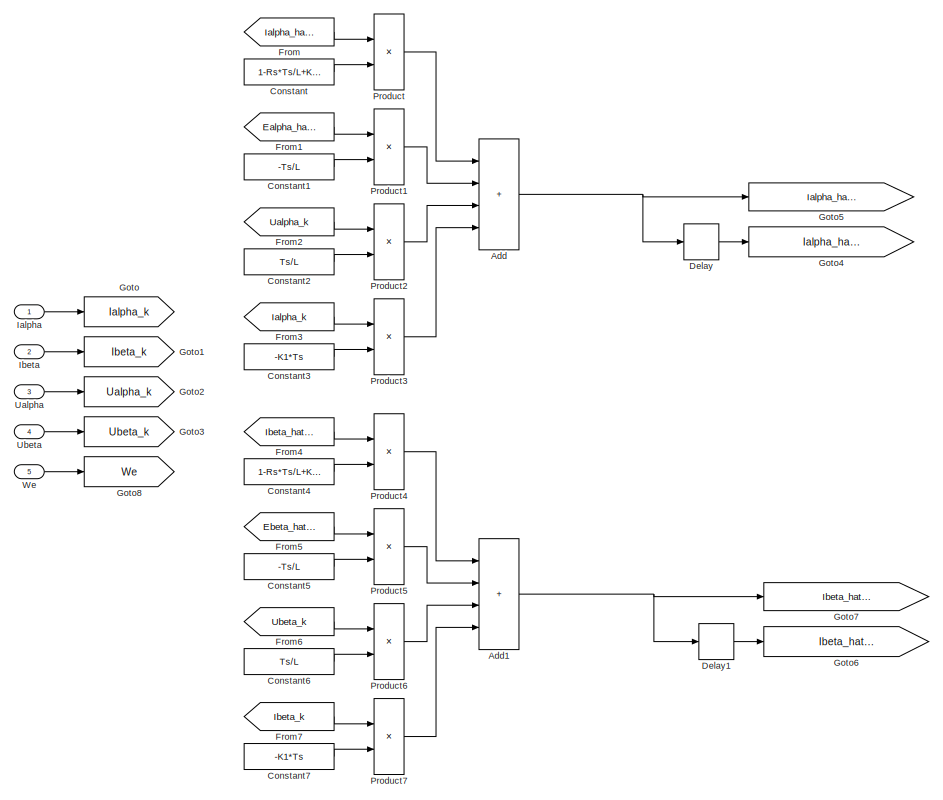
[diagram: Subsystem/Sensorless/Luenberger_observer/OBSERVER - part 1/2, left side, full height]
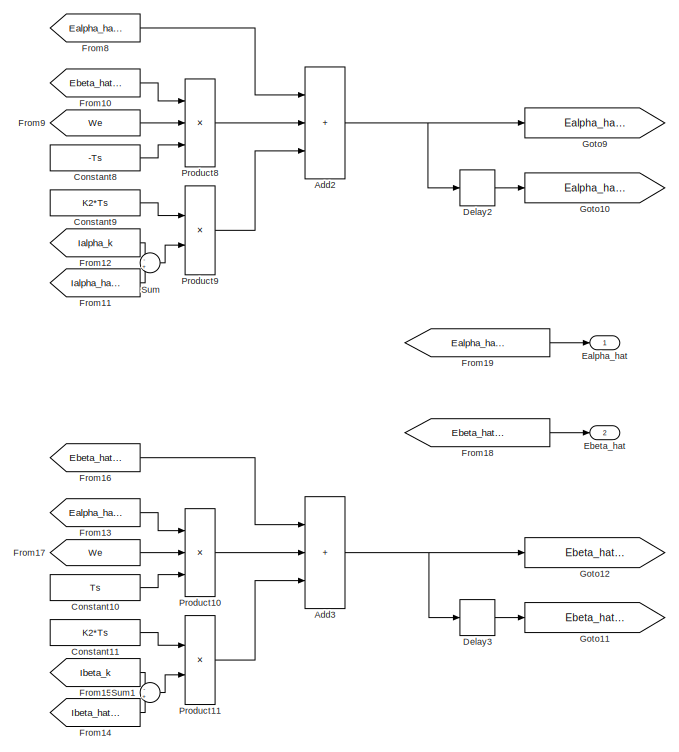
[diagram: Subsystem/Sensorless/Luenberger_observer/OBSERVER - part 2/2, right side, full height]
BLOCK [SubSystem] Subsystem/Sensorless/Luenberger_observer/OBSERVER
BLOCK [Sum] Subsystem/Sensorless/Luenberger_observer/OBSERVER/Add
  IconShape = rectangular
  Inputs = ++++
BLOCK [Sum] Subsystem/Sensorless/Luenberger_observer/OBSERVER/Add1
  IconShape = rectangular
  Inputs = ++++
BLOCK [Sum] Subsystem/Sensorless/Luenberger_observer/OBSERVER/Add2
  IconShape = rectangular
  Inputs = +++
BLOCK [Sum] Subsystem/Sensorless/Luenberger_observer/OBSERVER/Add3
  IconShape = rectangular
  Inputs = +++
BLOCK [Constant] Subsystem/Sensorless/Luenberger_observer/OBSERVER/Constant
  Value = 1-Rs*Ts/L+K1*Ts
BLOCK [Constant] Subsystem/Sensorless/Luenberger_observer/OBSERVER/Constant1
  Value = -Ts/L
BLOCK [Constant] Subsystem/Sensorless/Luenberger_observer/OBSERVER/Constant10
  Value = Ts
BLOCK [Constant] Subsystem/Sensorless/Luenberger_observer/OBSERVER/Constant11
  Value = K2*Ts
BLOCK [Constant] Subsystem/Sensorless/Luenberger_observer/OBSERVER/Constant2
  Value = Ts/L
BLOCK [Constant] Subsystem/Sensorless/Luenberger_observer/OBSERVER/Constant3
  Value = -K1*Ts
BLOCK [Constant] Subsystem/Sensorless/Luenberger_observer/OBSERVER/Constant4
  Value = 1-Rs*Ts/L+K1*Ts
BLOCK [Constant] Subsystem/Sensorless/Luenberger_observer/OBSERVER/Constant5
  Value = -Ts/L
BLOCK [Constant] Subsystem/Sensorless/Luenberger_observer/OBSERVER/Constant6
  Value = Ts/L
BLOCK [Constant] Subsystem/Sensorless/Luenberger_observer/OBSERVER/Constant7
  Value = -K1*Ts
BLOCK [Constant] Subsystem/Sensorless/Luenberger_observer/OBSERVER/Constant8
  Value = -Ts
BLOCK [Constant] Subsystem/Sensorless/Luenberger_observer/OBSERVER/Constant9
  Value = K2*Ts
BLOCK [Delay] Subsystem/Sensorless/Luenberger_observer/OBSERVER/Delay
  DelayLength = 1
  InputPortMap = u0
  InputProcessing = Columns as channels (frame based)
BLOCK [Delay] Subsystem/Sensorless/Luenberger_observer/OBSERVER/Delay1
  DelayLength = 1
  InputPortMap = u0
  InputProcessing = Columns as channels (frame based)
BLOCK [Delay] Subsystem/Sensorless/Luenberger_observer/OBSERVER/Delay2
  DelayLength = 1
  InputPortMap = u0
  InputProcessing = Columns as channels (frame based)
BLOCK [Delay] Subsystem/Sensorless/Luenberger_observer/OBSERVER/Delay3
  DelayLength = 1
  InputPortMap = u0
  InputProcessing = Columns as channels (frame based)
BLOCK [Outport] Subsystem/Sensorless/Luenberger_observer/OBSERVER/Ealpha_hat
BLOCK [Outport] Subsystem/Sensorless/Luenberger_observer/OBSERVER/Ebeta_hat
  Port = 2
BLOCK [From] Subsystem/Sensorless/Luenberger_observer/OBSERVER/From
  GotoTag = Ialpha_hat_k
BLOCK [From] Subsystem/Sensorless/Luenberger_observer/OBSERVER/From1
  GotoTag = Ealpha_hat_k
BLOCK [From] Subsystem/Sensorless/Luenberger_observer/OBSERVER/From10
  GotoTag = Ebeta_hat_k
BLOCK [From] Subsystem/Sensorless/Luenberger_observer/OBSERVER/From11
  GotoTag = Ialpha_hat_k
BLOCK [From] Subsystem/Sensorless/Luenberger_observer/OBSERVER/From12
  GotoTag = Ialpha_k
BLOCK [From] Subsystem/Sensorless/Luenberger_observer/OBSERVER/From13
  GotoTag = Ealpha_hat_k
BLOCK [From] Subsystem/Sensorless/Luenberger_observer/OBSERVER/From14
  GotoTag = Ibeta_hat_k
BLOCK [From] Subsystem/Sensorless/Luenberger_observer/OBSERVER/From15
  GotoTag = Ibeta_k
BLOCK [From] Subsystem/Sensorless/Luenberger_observer/OBSERVER/From16
  GotoTag = Ebeta_hat_k
BLOCK [From] Subsystem/Sensorless/Luenberger_observer/OBSERVER/From17
  GotoTag = We
BLOCK [From] Subsystem/Sensorless/Luenberger_observer/OBSERVER/From18
  GotoTag = Ebeta_hat_k
BLOCK [From] Subsystem/Sensorless/Luenberger_observer/OBSERVER/From19
  GotoTag = Ealpha_hat_k
BLOCK [From] Subsystem/Sensorless/Luenberger_observer/OBSERVER/From2
  GotoTag = Ualpha_k
BLOCK [From] Subsystem/Sensorless/Luenberger_observer/OBSERVER/From3
  GotoTag = Ialpha_k
BLOCK [From] Subsystem/Sensorless/Luenberger_observer/OBSERVER/From4
  GotoTag = Ibeta_hat_k
BLOCK [From] Subsystem/Sensorless/Luenberger_observer/OBSERVER/From5
  GotoTag = Ebeta_hat_k
BLOCK [From] Subsystem/Sensorless/Luenberger_observer/OBSERVER/From6
  GotoTag = Ubeta_k
BLOCK [From] Subsystem/Sensorless/Luenberger_observer/OBSERVER/From7
  GotoTag = Ibeta_k
BLOCK [From] Subsystem/Sensorless/Luenberger_observer/OBSERVER/From8
  GotoTag = Ealpha_hat_k
BLOCK [From] Subsystem/Sensorless/Luenberger_observer/OBSERVER/From9
  GotoTag = We
BLOCK [Goto] Subsystem/Sensorless/Luenberger_observer/OBSERVER/Goto
  GotoTag = Ialpha_k
BLOCK [Goto] Subsystem/Sensorless/Luenberger_observer/OBSERVER/Goto1
  GotoTag = Ibeta_k
BLOCK [Goto] Subsystem/Sensorless/Luenberger_observer/OBSERVER/Goto10
  GotoTag = Ealpha_hat_k
BLOCK [Goto] Subsystem/Sensorless/Luenberger_observer/OBSERVER/Goto11
  GotoTag = Ebeta_hat_k
BLOCK [Goto] Subsystem/Sensorless/Luenberger_observer/OBSERVER/Goto12
  GotoTag = Ebeta_hat_k_add_1
BLOCK [Goto] Subsystem/Sensorless/Luenberger_observer/OBSERVER/Goto2
  GotoTag = Ualpha_k
BLOCK [Goto] Subsystem/Sensorless/Luenberger_observer/OBSERVER/Goto3
  GotoTag = Ubeta_k
BLOCK [Goto] Subsystem/Sensorless/Luenberger_observer/OBSERVER/Goto4
  GotoTag = Ialpha_hat_k
BLOCK [Goto] Subsystem/Sensorless/Luenberger_observer/OBSERVER/Goto5
  GotoTag = Ialpha_hat_k_add_1
BLOCK [Goto] Subsystem/Sensorless/Luenberger_observer/OBSERVER/Goto6
  GotoTag = Ibeta_hat_k
BLOCK [Goto] Subsystem/Sensorless/Luenberger_observer/OBSERVER/Goto7
  GotoTag = Ibeta_hat_k_add_1
BLOCK [Goto] Subsystem/Sensorless/Luenberger_observer/OBSERVER/Goto8
  GotoTag = We
BLOCK [Goto] Subsystem/Sensorless/Luenberger_observer/OBSERVER/Goto9
  GotoTag = Ealpha_hat_k_add_1
BLOCK [Inport] Subsystem/Sensorless/Luenberger_observer/OBSERVER/Ialpha
BLOCK [Inport] Subsystem/Sensorless/Luenberger_observer/OBSERVER/Ibeta
  Port = 2
BLOCK [Product] Subsystem/Sensorless/Luenberger_observer/OBSERVER/Product
BLOCK [Product] Subsystem/Sensorless/Luenberger_observer/OBSERVER/Product1
BLOCK [Product] Subsystem/Sensorless/Luenberger_observer/OBSERVER/Product10
  Inputs = 3
BLOCK [Product] Subsystem/Sensorless/Luenberger_observer/OBSERVER/Product11
BLOCK [Product] Subsystem/Sensorless/Luenberger_observer/OBSERVER/Product2
BLOCK [Product] Subsystem/Sensorless/Luenberger_observer/OBSERVER/Product3
BLOCK [Product] Subsystem/Sensorless/Luenberger_observer/OBSERVER/Product4
BLOCK [Product] Subsystem/Sensorless/Luenberger_observer/OBSERVER/Product5
BLOCK [Product] Subsystem/Sensorless/Luenberger_observer/OBSERVER/Product6
BLOCK [Product] Subsystem/Sensorless/Luenberger_observer/OBSERVER/Product7
BLOCK [Product] Subsystem/Sensorless/Luenberger_observer/OBSERVER/Product8
  Inputs = 3
BLOCK [Product] Subsystem/Sensorless/Luenberger_observer/OBSERVER/Product9
BLOCK [Sum] Subsystem/Sensorless/Luenberger_observer/OBSERVER/Sum
  Inputs = -+
BLOCK [Sum] Subsystem/Sensorless/Luenberger_observer/OBSERVER/Sum1
  Inputs = -+
BLOCK [Inport] Subsystem/Sensorless/Luenberger_observer/OBSERVER/Ualpha
  Port = 3
BLOCK [Inport] Subsystem/Sensorless/Luenberger_observer/OBSERVER/Ubeta
  Port = 4
BLOCK [Inport] Subsystem/Sensorless/Luenberger_observer/OBSERVER/We
  Port = 5
BLOCK [SubSystem] Subsystem/Sensorless/Luenberger_observer/PLL
BLOCK [Constant] Subsystem/Sensorless/Luenberger_observer/PLL/Constant3
  Value = 2*pi
BLOCK [Trigonometry] Subsystem/Sensorless/Luenberger_observer/PLL/Cos
  NumberOfIterations = 20
BLOCK [DiscreteIntegrator] Subsystem/Sensorless/Luenberger_observer/PLL/Discrete-Time Integrator
  ICPrevOutput = DiscIntNeverNeededParam
  ICPrevScaledInput = DiscIntNeverNeededParam
  InitialConditionSetting = Auto
  SampleTime = -1
BLOCK [Display] Subsystem/Sensorless/Luenberger_observer/PLL/Display
  Decimation = 1
BLOCK [Inport] Subsystem/Sensorless/Luenberger_observer/PLL/Ealpha_hat
BLOCK [Inport] Subsystem/Sensorless/Luenberger_observer/PLL/Ebeta_hat
  Port = 2
BLOCK [Reference] Subsystem/Sensorless/Luenberger_observer/PLL/Low-Pass Filter (Discrete or Continuous)  REF=eeGeneralControl/Low-Pass Filter
(Discrete or Continuous)
  SourceBlock = eeGeneralControl/Low-Pass Filter\n(Discrete or Continuous)
  SourceType = Low-Pass Filter (Discrete or Continuous)
BLOCK [Math] Subsystem/Sensorless/Luenberger_observer/PLL/Mod1
  Operator = mod
BLOCK [Product] Subsystem/Sensorless/Luenberger_observer/PLL/Product
BLOCK [Product] Subsystem/Sensorless/Luenberger_observer/PLL/Product1
BLOCK [Scope] Subsystem/Sensorless/Luenberger_observer/PLL/Scope1
  Floating = off
  NumInputPorts = 2
  ScopeSpecificationString = Simulink.scopes.TimeScopeBlockCfg('CurrentConfiguration', extmgr.ConfigurationSet(extmgr.Configuration('Core','General UI',true),extmgr.Configuration('Core','Source UI',true),extmgr.Configuration('Sources','WiredSimulink',true,'DataLoggingVariableName','ScopeData16'),extmgr.Configuration('Visuals','Time Domain',true,'SerializedDisplays',{struct('MinYLimReal','-0.12371','MaxYLimReal','0.7221','YLab...<+2292ch>
BLOCK [Trigonometry] Subsystem/Sensorless/Luenberger_observer/PLL/Sin
  NumberOfIterations = 20
  Operator = cos
BLOCK [SubSystem] Subsystem/Sensorless/Luenberger_observer/PLL/Subsystem3
BLOCK [Constant] Subsystem/Sensorless/Luenberger_observer/PLL/Subsystem3/Constant
  Value = Kp
BLOCK [Constant] Subsystem/Sensorless/Luenberger_observer/PLL/Subsystem3/Constant1
  Value = Ki
BLOCK [Constant] Subsystem/Sensorless/Luenberger_observer/PLL/Subsystem3/Constant2
  Value = Kd
BLOCK [Constant] Subsystem/Sensorless/Luenberger_observer/PLL/Subsystem3/Constant3
  Value = Ts
BLOCK [Constant] Subsystem/Sensorless/Luenberger_observer/PLL/Subsystem3/Constant4
  Value = max_Integral
BLOCK [Constant] Subsystem/Sensorless/Luenberger_observer/PLL/Subsystem3/Constant5
  Value = min_Integral
BLOCK [Constant] Subsystem/Sensorless/Luenberger_observer/PLL/Subsystem3/Constant6
  Value = max_output
BLOCK [Constant] Subsystem/Sensorless/Luenberger_observer/PLL/Subsystem3/Constant7
  Value = min_output
BLOCK [SubSystem] Subsystem/Sensorless/Luenberger_observer/PLL/Subsystem3/MATLAB Function
  ErrorFcn = Stateflow.Translate.translate
  PermitHierarchicalResolution = ExplicitOnly
  SFBlockType = MATLAB Function
  TreatAsAtomicUnit = on
BLOCK [Demux] Subsystem/Sensorless/Luenberger_observer/PLL/Subsystem3/MATLAB Function/ Demux 
  Outputs = 1
BLOCK [S-Function] Subsystem/Sensorless/Luenberger_observer/PLL/Subsystem3/MATLAB Function/ SFunction 
  EnableBusSupport = on
  FunctionName = sf_sfun
  PortCounts = [9 2]
  SFcnIsStateOwnerBlock = off
  SFunctionDeploymentMode = off
  Tag = Stateflow S-Function 5
BLOCK [Terminator] Subsystem/Sensorless/Luenberger_observer/PLL/Subsystem3/MATLAB Function/ Terminator 
BLOCK [Inport] Subsystem/Sensorless/Luenberger_observer/PLL/Subsystem3/MATLAB Function/Kd
  Port = 4
BLOCK [Inport] Subsystem/Sensorless/Luenberger_observer/PLL/Subsystem3/MATLAB Function/Ki
  Port = 3
BLOCK [Inport] Subsystem/Sensorless/Luenberger_observer/PLL/Subsystem3/MATLAB Function/Kp
  Port = 2
BLOCK [Inport] Subsystem/Sensorless/Luenberger_observer/PLL/Subsystem3/MATLAB Function/Ts
  Port = 5
BLOCK [Inport] Subsystem/Sensorless/Luenberger_observer/PLL/Subsystem3/MATLAB Function/error
BLOCK [Inport] Subsystem/Sensorless/Luenberger_observer/PLL/Subsystem3/MATLAB Function/max_Integral
  Port = 6
BLOCK [Inport] Subsystem/Sensorless/Luenberger_observer/PLL/Subsystem3/MATLAB Function/max_output
  Port = 8
BLOCK [Inport] Subsystem/Sensorless/Luenberger_observer/PLL/Subsystem3/MATLAB Function/min_Integral
  Port = 7
BLOCK [Inport] Subsystem/Sensorless/Luenberger_observer/PLL/Subsystem3/MATLAB Function/min_output
  Port = 9
BLOCK [Outport] Subsystem/Sensorless/Luenberger_observer/PLL/Subsystem3/MATLAB Function/output
BLOCK [Inport] Subsystem/Sensorless/Luenberger_observer/PLL/Subsystem3/error
BLOCK [Outport] Subsystem/Sensorless/Luenberger_observer/PLL/Subsystem3/output
BLOCK [Sum] Subsystem/Sensorless/Luenberger_observer/PLL/Sum
  Inputs = -+
BLOCK [Outport] Subsystem/Sensorless/Luenberger_observer/PLL/Theta_e
  Port = 2
BLOCK [Outport] Subsystem/Sensorless/Luenberger_observer/PLL/We
BLOCK [Scope] Subsystem/Sensorless/Luenberger_observer/Scope6
  Floating = off
  NumInputPorts = 2
  ScopeSpecificationString = Simulink.scopes.TimeScopeBlockCfg('CurrentConfiguration', extmgr.ConfigurationSet(extmgr.Configuration('Core','General UI',true),extmgr.Configuration('Core','Source UI',true),extmgr.Configuration('Sources','WiredSimulink',true,'DataLoggingVariableName','ScopeData12'),extmgr.Configuration('Visuals','Time Domain',true,'SerializedDisplays',{struct('MinYLimReal','-1961397469972624102486847672892555599...<+3498ch>
BLOCK [Outport] Subsystem/Sensorless/Luenberger_observer/Theta_e_sensorless
  Port = 2
BLOCK [Inport] Subsystem/Sensorless/Luenberger_observer/Ualpha
  Port = 3
BLOCK [Inport] Subsystem/Sensorless/Luenberger_observer/Ubeta
  Port = 4
BLOCK [Outport] Subsystem/Sensorless/Luenberger_observer/We_sensorless
BLOCK [ManualSwitch] Subsystem/Sensorless/Manual Switch
  CurrentSetting = 0
BLOCK [MultiPortSwitch] Subsystem/Sensorless/Multiport Switch
  DataPortOrder = Zero-based contiguous
  InputSameDT = off
  Inputs = 2
  SaturateOnIntegerOverflow = off
  zeroidx = on
BLOCK [MultiPortSwitch] Subsystem/Sensorless/Multiport Switch1
  DataPortOrder = Zero-based contiguous
  InputSameDT = off
  Inputs = 2
  SaturateOnIntegerOverflow = off
  zeroidx = on
BLOCK [SubSystem] Subsystem/Sensorless/Park
BLOCK [Fcn] Subsystem/Sensorless/Park/Fcn
  Expr = cos(u(3))*u(1)+sin(u(3))*u(2)
BLOCK [Fcn] Subsystem/Sensorless/Park/Fcn1
  Expr = -sin(u(3))*u(1)+cos(u(3))*u(2)
BLOCK [Outport] Subsystem/Sensorless/Park/I_d
BLOCK [Outport] Subsystem/Sensorless/Park/I_q
  Port = 2
BLOCK [Mux] Subsystem/Sensorless/Park/Mux
  DisplayOption = bar
  Inputs = 3
BLOCK [Inport] Subsystem/Sensorless/Park/The
  Port = 3
BLOCK [Inport] Subsystem/Sensorless/Park/alpha
BLOCK [Inport] Subsystem/Sensorless/Park/beta
  Port = 2
BLOCK [SubSystem] Subsystem/Sensorless/SVPWM_120
  ErrorFcn = Stateflow.Translate.translate
  PermitHierarchicalResolution = ExplicitOnly
  SFBlockType = MATLAB Function
  TreatAsAtomicUnit = on
BLOCK [Demux] Subsystem/Sensorless/SVPWM_120/ Demux 
  Outputs = 1
BLOCK [S-Function] Subsystem/Sensorless/SVPWM_120/ SFunction 
  EnableBusSupport = on
  FunctionName = sf_sfun
  PortCounts = [4 4]
  SFcnIsStateOwnerBlock = off
  SFunctionDeploymentMode = off
  Tag = Stateflow S-Function 7
BLOCK [Terminator] Subsystem/Sensorless/SVPWM_120/ Terminator 
BLOCK [Inport] Subsystem/Sensorless/SVPWM_120/Period
  Port = 3
BLOCK [Outport] Subsystem/Sensorless/SVPWM_120/Tcm1
BLOCK [Outport] Subsystem/Sensorless/SVPWM_120/Tcm2
  Port = 2
BLOCK [Outport] Subsystem/Sensorless/SVPWM_120/Tcm3
  Port = 3
BLOCK [Inport] Subsystem/Sensorless/SVPWM_120/U_alpha
BLOCK [Inport] Subsystem/Sensorless/SVPWM_120/U_beta
  Port = 2
BLOCK [Inport] Subsystem/Sensorless/SVPWM_120/U_dc
  Port = 4
BLOCK [Scope] Subsystem/Sensorless/Scope
  Floating = off
  NumInputPorts = 2
  ScopeSpecificationString = Simulink.scopes.TimeScopeBlockCfg('CurrentConfiguration', extmgr.ConfigurationSet(extmgr.Configuration('Core','General UI',true),extmgr.Configuration('Core','Source UI',true),extmgr.Configuration('Sources','WiredSimulink',true,'DataLoggingVariableName','ScopeData7'),extmgr.Configuration('Visuals','Time Domain',true,'SerializedDisplays',{struct('MinYLimReal','-6.36093','MaxYLimReal','6.42035','YLab...<+1554ch>
BLOCK [Scope] Subsystem/Sensorless/Scope1
  Floating = off
  NumInputPorts = 2
  ScopeSpecificationString = Simulink.scopes.TimeScopeBlockCfg('CurrentConfiguration', extmgr.ConfigurationSet(extmgr.Configuration('Core','General UI',true),extmgr.Configuration('Core','Source UI',true),extmgr.Configuration('Sources','WiredSimulink',true,'DataLoggingVariableName','ScopeData8'),extmgr.Configuration('Visuals','Time Domain',true,'SerializedDisplays',{struct('MinYLimReal','-2.42029','MaxYLimReal','4.40119','YLab...<+1515ch>
BLOCK [Scope] Subsystem/Sensorless/Scope2
  Floating = off
  NumInputPorts = 2
  ScopeSpecificationString = Simulink.scopes.TimeScopeBlockCfg('CurrentConfiguration', extmgr.ConfigurationSet(extmgr.Configuration('Core','General UI',true,'FigureColor',[1 1 1]),extmgr.Configuration('Core','Source UI',true),extmgr.Configuration('Sources','WiredSimulink',true,'DataLoggingVariableName','ScopeData2'),extmgr.Configuration('Visuals','Time Domain',true,'SerializedDisplays',{struct('MinYLimReal','-1430.10452','Max...<+2447ch>
BLOCK [Scope] Subsystem/Sensorless/Scope4
  Floating = off
  NumInputPorts = 2
  ScopeSpecificationString = Simulink.scopes.TimeScopeBlockCfg('CurrentConfiguration', extmgr.ConfigurationSet(extmgr.Configuration('Core','General UI',true,'FigureColor',[1 1 1]),extmgr.Configuration('Core','Source UI',true),extmgr.Configuration('Sources','WiredSimulink',true,'DataLoggingVariableName','ScopeData1'),extmgr.Configuration('Visuals','Time Domain',true,'SerializedDisplays',{struct('MinYLimReal','-222.33507','MaxY...<+2419ch>
BLOCK [Scope] Subsystem/Sensorless/Scope5
  Floating = off
  NumInputPorts = 2
  ScopeSpecificationString = Simulink.scopes.TimeScopeBlockCfg('CurrentConfiguration', extmgr.ConfigurationSet(extmgr.Configuration('Core','General UI',true,'FigureColor',[1 1 1]),extmgr.Configuration('Core','Source UI',true),extmgr.Configuration('Sources','WiredSimulink',true,'DataLoggingVariableName','ScopeData2'),extmgr.Configuration('Visuals','Time Domain',true,'SerializedDisplays',{struct('MinYLimReal','-0.32252','MaxYLi...<+2427ch>
BLOCK [Scope] Subsystem/Sensorless/Scope9
  Floating = off
  NumInputPorts = 3
  ScopeSpecificationString = Simulink.scopes.TimeScopeBlockCfg('CurrentConfiguration', extmgr.ConfigurationSet(extmgr.Configuration('Core','General UI',true,'FigureColor',[1 1 1]),extmgr.Configuration('Core','Source UI',true),extmgr.Configuration('Sources','WiredSimulink',true,'DataLoggingVariableName','ScopeData1'),extmgr.Configuration('Visuals','Time Domain',true,'SerializedDisplays',{struct('MinYLimReal','1367.1495','MaxYL...<+2451ch>
BLOCK [Inport] Subsystem/Sensorless/SpeedRef
BLOCK [Switch] Subsystem/Sensorless/Switch
  Criteria = u2 > Threshold
  InputSameDT = off
  NameLocation = left
  SaturateOnIntegerOverflow = off
BLOCK [Switch] Subsystem/Sensorless/Switch1
  Criteria = u2 > Threshold
  InputSameDT = off
  SaturateOnIntegerOverflow = off
BLOCK [Switch] Subsystem/Sensorless/Switch2
  Criteria = u2 > Threshold
  InputSameDT = off
  SaturateOnIntegerOverflow = off
BLOCK [Outport] Subsystem/Sensorless/Tcm1
BLOCK [Outport] Subsystem/Sensorless/Tcm2
  Port = 2
BLOCK [Outport] Subsystem/Sensorless/Tcm3
  NameLocation = top
  Port = 3
BLOCK [Inport] Subsystem/SpeedRef
BLOCK [Outport] Subsystem/Tcm1
BLOCK [Outport] Subsystem/Tcm2
  Port = 2
BLOCK [Outport] Subsystem/Tcm3
  Port = 3
BLOCK [TriggerPort] Subsystem/Trigger
  PortDimensions = 1
  StatesWhenEnabling = held
  VariantControl = (inherit)
BLOCK [SubSystem] Subsystem4
BLOCK [BusCreator] Subsystem4/Bus Creator
  DisplayOption = bar
  InheritFromInputs = on
  Inputs = 3
BLOCK [BusSelector] Subsystem4/Bus Selector
  OutputSignals = Te,ias,ibs,ics,w,theta,vqs,vds
BLOCK [BusSelector] Subsystem4/Bus Selector1
  Commented = on
  OutputSignals = Electromagnetic torque Te (N*m),Stator current is_a (A),Stator current is_b (A),Stator current is_c (A),Rotor speed wm (rad/s),Rotor angle thetam (rad)
BLOCK [Constant] Subsystem4/Constant1
  Value = 2*pi
BLOCK [Gain] Subsystem4/Gain1
  Gain = Pn
BLOCK [Gain] Subsystem4/Gain4
  Gain = Pn
BLOCK [Outport] Subsystem4/Iabc
  Port = 2
BLOCK [Inport] Subsystem4/In1
BLOCK [Math] Subsystem4/Mod1
  Operator = mod
BLOCK [Mux] Subsystem4/Mux1
  Commented = on
  DisplayOption = bar
  Inputs = 3
BLOCK [Scope] Subsystem4/Scope
  Floating = off
  NumInputPorts = 2
  ScopeSpecificationString = Simulink.scopes.TimeScopeBlockCfg('CurrentConfiguration', extmgr.ConfigurationSet(extmgr.Configuration('Core','General UI',true),extmgr.Configuration('Core','Source UI',true),extmgr.Configuration('Sources','WiredSimulink',true,'DataLoggingVariableName','ScopeData3'),extmgr.Configuration('Visuals','Time Domain',true,'SerializedDisplays',{struct('MinYLimReal','-0.00172','MaxYLimReal','0.00019','YLab...<+2620ch>
BLOCK [Outport] Subsystem4/Te
BLOCK [Outport] Subsystem4/Theta_e
  Port = 6
BLOCK [Outport] Subsystem4/Theta_m
  Port = 4
BLOCK [Outport] Subsystem4/We
  Port = 5
BLOCK [Outport] Subsystem4/Wm
  Port = 3
BLOCK [Reference] Two-Level Converter1  REF=spsTwoLevelConverterLib/Two-Level Converter
  LibrarySourceBlock = sps_lib/Power Electronics/Two-Level Converter
  SourceBlock = spsTwoLevelConverterLib/Two-Level Converter
  SourceType = Two-Level Converter
BLOCK [Reference] powergui  REF=spspowerguiLib/powergui
  LibrarySourceBlock = sps_lib/powergui
  Priority = 1
  SourceBlock = spspowerguiLib/powergui
  SourceType = PSB option menu block
ANNOTATION (root): SPEEDREF
ANNOTATION (root): TLoad
ANNOTATION Subsystem/Sensorless: SENSOR
ANNOTATION Subsystem/Sensorless: SENSORLESS
ANNOTATION Subsystem/Sensorless: 此处切换弱磁控制还是磁链观测，在弱磁控制模式下磁链受弱磁影响，不能使用磁链观测器
LINE Constant1:1 -> Permanent Magnet Synchronous Machine1:1
LINE Constant8:1 -> Subsystem:1
LINE From1:1 -> Subsystem:4
LINE From2:1 -> Subsystem:2
LINE From:1 -> Subsystem:3
NET PWM_GENERATOR/Subsystem1/Bus Creator1:1 -> PWM_GENERATOR/Subsystem1/SVPWM pulses:1, PWM_GENERATOR/Subsystem1/Scope3:1
LINE PWM_GENERATOR/Subsystem1/Cast To Boolean1:1 -> PWM_GENERATOR/Subsystem1/NOT4:1
LINE PWM_GENERATOR/Subsystem1/Cast To Boolean2:1 -> PWM_GENERATOR/Subsystem1/NOT5:1
LINE PWM_GENERATOR/Subsystem1/Cast To Boolean:1 -> PWM_GENERATOR/Subsystem1/NOT:1
LINE PWM_GENERATOR/Subsystem1/Data Type Conversion4:1 -> PWM_GENERATOR/Subsystem1/Bus Creator1:4
LINE PWM_GENERATOR/Subsystem1/Data Type Conversion5:1 -> PWM_GENERATOR/Subsystem1/Bus Creator1:6
LINE PWM_GENERATOR/Subsystem1/Data Type Conversion:1 -> PWM_GENERATOR/Subsystem1/Bus Creator1:2
LINE PWM_GENERATOR/Subsystem1/NOT4:1 -> PWM_GENERATOR/Subsystem1/Data Type Conversion4:1
LINE PWM_GENERATOR/Subsystem1/NOT5:1 -> PWM_GENERATOR/Subsystem1/Data Type Conversion5:1
LINE PWM_GENERATOR/Subsystem1/NOT:1 -> PWM_GENERATOR/Subsystem1/Data Type Conversion:1
NET PWM_GENERATOR/Subsystem1/Relay1:1 -> PWM_GENERATOR/Subsystem1/Bus Creator1:3, PWM_GENERATOR/Subsystem1/Cast To Boolean1:1
NET PWM_GENERATOR/Subsystem1/Relay2:1 -> PWM_GENERATOR/Subsystem1/Bus Creator1:5, PWM_GENERATOR/Subsystem1/Cast To Boolean2:1, PWM_GENERATOR/Subsystem1/Scope2:1
NET PWM_GENERATOR/Subsystem1/Relay:1 -> PWM_GENERATOR/Subsystem1/Bus Creator1:1, PWM_GENERATOR/Subsystem1/Cast To Boolean:1
NET PWM_GENERATOR/Subsystem1/Repeating Sequence1:1 -> PWM_GENERATOR/Subsystem1/Scope1:1, PWM_GENERATOR/Subsystem1/Subtract1:2, PWM_GENERATOR/Subsystem1/Subtract2:2, PWM_GENERATOR/Subsystem1/Subtract:2
LINE PWM_GENERATOR/Subsystem1/Subtract1:1 -> PWM_GENERATOR/Subsystem1/Relay1:1
NET PWM_GENERATOR/Subsystem1/Subtract2:1 -> PWM_GENERATOR/Subsystem1/Relay2:1, PWM_GENERATOR/Subsystem1/Scope:1
LINE PWM_GENERATOR/Subsystem1/Subtract:1 -> PWM_GENERATOR/Subsystem1/Relay:1
LINE PWM_GENERATOR/Subsystem1/Tcm1:1 -> PWM_GENERATOR/Subsystem1/Subtract:1
LINE PWM_GENERATOR/Subsystem1/Tcm2:1 -> PWM_GENERATOR/Subsystem1/Subtract1:1
LINE PWM_GENERATOR/Subsystem1/Tcm3:1 -> PWM_GENERATOR/Subsystem1/Subtract2:1
LINE PWM_GENERATOR/Subsystem1:1 -> PWM_GENERATOR/SVPWM pulses:1
NET PWM_GENERATOR/Tcm1:1 -> PWM_GENERATOR/Scope1:1, PWM_GENERATOR/Subsystem1:1
NET PWM_GENERATOR/Tcm2:1 -> PWM_GENERATOR/Scope1:2, PWM_GENERATOR/Subsystem1:2
NET PWM_GENERATOR/Tcm3:1 -> PWM_GENERATOR/Scope1:3, PWM_GENERATOR/Subsystem1:3
NET PWM_GENERATOR:1 -> Scope5:1, Two-Level Converter1:1
LINE Permanent Magnet Synchronous Machine1:1 -> Subsystem4:1
LINE Pulse Generator:1 -> Subsystem:trigger
LINE Subsystem/Iabc:1 -> Subsystem/Sensorless:3
LINE Subsystem/In2:1 -> Subsystem/Sensorless:2
LINE Subsystem/In4:1 -> Subsystem/Sensorless:4
NET Subsystem/Sensorless/AntiParkOvermodulation/1-D Lookup Table1:1 -> Subsystem/Sensorless/AntiParkOvermodulation/Product2:1, Subsystem/Sensorless/AntiParkOvermodulation/Product3:1
NET Subsystem/Sensorless/AntiParkOvermodulation/Add:1 -> Subsystem/Sensorless/AntiParkOvermodulation/Fcn3:1, Subsystem/Sensorless/AntiParkOvermodulation/Fcn4:1
LINE Subsystem/Sensorless/AntiParkOvermodulation/Constant:1 -> Subsystem/Sensorless/AntiParkOvermodulation/MATLAB Function:3
LINE Subsystem/Sensorless/AntiParkOvermodulation/Fcn3:1 -> Subsystem/Sensorless/AntiParkOvermodulation/Product2:2
LINE Subsystem/Sensorless/AntiParkOvermodulation/Fcn4:1 -> Subsystem/Sensorless/AntiParkOvermodulation/Product3:2
NET Subsystem/Sensorless/AntiParkOvermodulation/Fcn5:1 -> Subsystem/Sensorless/AntiParkOvermodulation/Add:1, Subsystem/Sensorless/AntiParkOvermodulation/Scope1:2
NET Subsystem/Sensorless/AntiParkOvermodulation/Flag/Chart1:1 -> Subsystem/Sensorless/AntiParkOvermodulation/Flag/Delay:1, Subsystem/Sensorless/AntiParkOvermodulation/Flag/speed_error3:1
LINE Subsystem/Sensorless/AntiParkOvermodulation/Flag/Delay:1 -> Subsystem/Sensorless/AntiParkOvermodulation/Flag/state:1
LINE Subsystem/Sensorless/AntiParkOvermodulation/Flag/Fcn1:1 -> Subsystem/Sensorless/AntiParkOvermodulation/Flag/speed_error3:3
LINE Subsystem/Sensorless/AntiParkOvermodulation/Flag/Fcn2:1 -> Subsystem/Sensorless/AntiParkOvermodulation/Flag/speed_error3:2
LINE Subsystem/Sensorless/AntiParkOvermodulation/Flag/From3:1 -> Subsystem/Sensorless/AntiParkOvermodulation/Flag/Chart1:2
LINE Subsystem/Sensorless/AntiParkOvermodulation/Flag/From4:1 -> Subsystem/Sensorless/AntiParkOvermodulation/Flag/Chart1:3
LINE Subsystem/Sensorless/AntiParkOvermodulation/Flag/From5:1 -> Subsystem/Sensorless/AntiParkOvermodulation/Flag/Mux1:1
LINE Subsystem/Sensorless/AntiParkOvermodulation/Flag/From6:1 -> Subsystem/Sensorless/AntiParkOvermodulation/Flag/Mux1:2
LINE Subsystem/Sensorless/AntiParkOvermodulation/Flag/From8:1 -> Subsystem/Sensorless/AntiParkOvermodulation/Flag/Mux:1
LINE Subsystem/Sensorless/AntiParkOvermodulation/Flag/From9:1 -> Subsystem/Sensorless/AntiParkOvermodulation/Flag/Mux:2
LINE Subsystem/Sensorless/AntiParkOvermodulation/Flag/From:1 -> Subsystem/Sensorless/AntiParkOvermodulation/Flag/Chart1:4
LINE Subsystem/Sensorless/AntiParkOvermodulation/Flag/Modulu:1 -> Subsystem/Sensorless/AntiParkOvermodulation/Flag/Chart1:1
LINE Subsystem/Sensorless/AntiParkOvermodulation/Flag/Mux1:1 -> Subsystem/Sensorless/AntiParkOvermodulation/Flag/Fcn1:1
LINE Subsystem/Sensorless/AntiParkOvermodulation/Flag/Mux:1 -> Subsystem/Sensorless/AntiParkOvermodulation/Flag/Fcn2:1
NET Subsystem/Sensorless/AntiParkOvermodulation/Flag:1 -> Subsystem/Sensorless/AntiParkOvermodulation/Display:1, Subsystem/Sensorless/AntiParkOvermodulation/Goto17:1
NET Subsystem/Sensorless/AntiParkOvermodulation/MATLAB Function:1 -> Subsystem/Sensorless/AntiParkOvermodulation/Flag:1, Subsystem/Sensorless/AntiParkOvermodulation/Scope2:1
LINE Subsystem/Sensorless/AntiParkOvermodulation/MATLAB Function:2 -> Subsystem/Sensorless/AntiParkOvermodulation/1-D Lookup Table1:1
LINE Subsystem/Sensorless/AntiParkOvermodulation/Mux1:1 -> Subsystem/Sensorless/AntiParkOvermodulation/Fcn5:1
NET Subsystem/Sensorless/AntiParkOvermodulation/Product2:1 -> Subsystem/Sensorless/AntiParkOvermodulation/Scope:1, Subsystem/Sensorless/AntiParkOvermodulation/U_alpha:1, Subsystem/Sensorless/AntiParkOvermodulation/XY Graph:1
NET Subsystem/Sensorless/AntiParkOvermodulation/Product3:1 -> Subsystem/Sensorless/AntiParkOvermodulation/Scope:2, Subsystem/Sensorless/AntiParkOvermodulation/U_beta:1, Subsystem/Sensorless/AntiParkOvermodulation/XY Graph:2
LINE Subsystem/Sensorless/AntiParkOvermodulation/The:1 -> Subsystem/Sensorless/AntiParkOvermodulation/Add:2
NET Subsystem/Sensorless/AntiParkOvermodulation/Ud:1 -> Subsystem/Sensorless/AntiParkOvermodulation/MATLAB Function:2, Subsystem/Sensorless/AntiParkOvermodulation/Mux1:2, Subsystem/Sensorless/AntiParkOvermodulation/Scope3:2
NET Subsystem/Sensorless/AntiParkOvermodulation/Uq:1 -> Subsystem/Sensorless/AntiParkOvermodulation/MATLAB Function:1, Subsystem/Sensorless/AntiParkOvermodulation/Mux1:1, Subsystem/Sensorless/AntiParkOvermodulation/Scope3:1
NET Subsystem/Sensorless/AntiParkOvermodulation:1 -> Subsystem/Sensorless/Delay1:1, Subsystem/Sensorless/SVPWM_120:1
NET Subsystem/Sensorless/AntiParkOvermodulation:2 -> Subsystem/Sensorless/Delay:1, Subsystem/Sensorless/SVPWM_120:2
LINE Subsystem/Sensorless/Clark/Fcn1:1 -> Subsystem/Sensorless/Clark/I_beta:1
LINE Subsystem/Sensorless/Clark/Fcn:1 -> Subsystem/Sensorless/Clark/I_alpha:1
LINE Subsystem/Sensorless/Clark/Ia:1 -> Subsystem/Sensorless/Clark/Mux:1
LINE Subsystem/Sensorless/Clark/Ib:1 -> Subsystem/Sensorless/Clark/Mux:2
LINE Subsystem/Sensorless/Clark/Ic:1 -> Subsystem/Sensorless/Clark/Mux:3
NET Subsystem/Sensorless/Clark/Mux:1 -> Subsystem/Sensorless/Clark/Fcn1:1, Subsystem/Sensorless/Clark/Fcn:1
NET Subsystem/Sensorless/Clark:1 -> Subsystem/Sensorless/Goto2:1, Subsystem/Sensorless/Park:1, Subsystem/Sensorless/Scope:1
NET Subsystem/Sensorless/Clark:2 -> Subsystem/Sensorless/Goto3:1, Subsystem/Sensorless/Park:2, Subsystem/Sensorless/Scope:2
LINE Subsystem/Sensorless/Constant1:1 -> Subsystem/Sensorless/SVPWM_120:4
LINE Subsystem/Sensorless/Constant2:1 -> Subsystem/Sensorless/SVPWM_120:3
LINE Subsystem/Sensorless/Constant:1 -> Subsystem/Sensorless/Switch:3
LINE Subsystem/Sensorless/Delay1:1 -> Subsystem/Sensorless/Goto:1
LINE Subsystem/Sensorless/Delay2:1 -> Subsystem/Sensorless/Goto18:1
LINE Subsystem/Sensorless/Delay3:1 -> Subsystem/Sensorless/Goto19:1
LINE Subsystem/Sensorless/Delay:1 -> Subsystem/Sensorless/Goto1:1
LINE Subsystem/Sensorless/Demux1:1 -> Subsystem/Sensorless/Clark:1
LINE Subsystem/Sensorless/Demux1:2 -> Subsystem/Sensorless/Clark:2
LINE Subsystem/Sensorless/Demux1:3 -> Subsystem/Sensorless/Clark:3
LINE Subsystem/Sensorless/FW/Fcn3:1 -> Subsystem/Sensorless/FW/Uq:1
LINE Subsystem/Sensorless/FW/Id:1 -> Subsystem/Sensorless/FW/Sum6:2
NET Subsystem/Sensorless/FW/MyPID1:1 -> Subsystem/Sensorless/FW/Fcn3:1, Subsystem/Sensorless/FW/Ud:1
LINE Subsystem/Sensorless/FW/MyPID:1 -> Subsystem/Sensorless/FW/Sum6:1
LINE Subsystem/Sensorless/FW/Speed:1 -> Subsystem/Sensorless/FW/Sum5:2
LINE Subsystem/Sensorless/FW/SpeedRef:1 -> Subsystem/Sensorless/FW/Sum5:1
NET Subsystem/Sensorless/FW/State:1 -> Subsystem/Sensorless/FW/MyPID1:2, Subsystem/Sensorless/FW/MyPID:2
LINE Subsystem/Sensorless/FW/Sum5:1 -> Subsystem/Sensorless/FW/MyPID:1
LINE Subsystem/Sensorless/FW/Sum6:1 -> Subsystem/Sensorless/FW/MyPID1:1
LINE Subsystem/Sensorless/FW:1 -> Subsystem/Sensorless/Multiport Switch:3
LINE Subsystem/Sensorless/FW:2 -> Subsystem/Sensorless/Multiport Switch1:3
LINE Subsystem/Sensorless/FieldWeaken:1 -> Subsystem/Sensorless/Manual Switch:1
LINE Subsystem/Sensorless/FluxObserver:1 -> Subsystem/Sensorless/Manual Switch:2
LINE Subsystem/Sensorless/Flux_observer/Ialpha:1 -> Subsystem/Sensorless/Flux_observer/OBSERVER:1
LINE Subsystem/Sensorless/Flux_observer/Ibeta:1 -> Subsystem/Sensorless/Flux_observer/OBSERVER:2
NET Subsystem/Sensorless/Flux_observer/OBSERVER/Constant1:1 -> Subsystem/Sensorless/Flux_observer/OBSERVER/Product1:3, Subsystem/Sensorless/Flux_observer/OBSERVER/Product:3
LINE Subsystem/Sensorless/Flux_observer/OBSERVER/Constant:1 -> Subsystem/Sensorless/Flux_observer/OBSERVER/Square3:1
NET Subsystem/Sensorless/Flux_observer/OBSERVER/Delay1:1 -> Subsystem/Sensorless/Flux_observer/OBSERVER/Goto3:1, Subsystem/Sensorless/Flux_observer/OBSERVER/Sum10:2
NET Subsystem/Sensorless/Flux_observer/OBSERVER/Delay:1 -> Subsystem/Sensorless/Flux_observer/OBSERVER/Goto2:1, Subsystem/Sensorless/Flux_observer/OBSERVER/Sum8:2
LINE Subsystem/Sensorless/Flux_observer/OBSERVER/From1:1 -> Subsystem/Sensorless/Flux_observer/OBSERVER/Sum2:1
LINE Subsystem/Sensorless/Flux_observer/OBSERVER/From2:1 -> Subsystem/Sensorless/Flux_observer/OBSERVER/Gain6:1
LINE Subsystem/Sensorless/Flux_observer/OBSERVER/From3:1 -> Subsystem/Sensorless/Flux_observer/OBSERVER/Gain7:1
LINE Subsystem/Sensorless/Flux_observer/OBSERVER/From:1 -> Subsystem/Sensorless/Flux_observer/OBSERVER/Sum3:1
LINE Subsystem/Sensorless/Flux_observer/OBSERVER/Gain1:1 -> Subsystem/Sensorless/Flux_observer/OBSERVER/Sum1:1
LINE Subsystem/Sensorless/Flux_observer/OBSERVER/Gain2:1 -> Subsystem/Sensorless/Flux_observer/OBSERVER/Sum2:2
LINE Subsystem/Sensorless/Flux_observer/OBSERVER/Gain3:1 -> Subsystem/Sensorless/Flux_observer/OBSERVER/Sum3:2
LINE Subsystem/Sensorless/Flux_observer/OBSERVER/Gain4:1 -> Subsystem/Sensorless/Flux_observer/OBSERVER/Sum8:1
LINE Subsystem/Sensorless/Flux_observer/OBSERVER/Gain5:1 -> Subsystem/Sensorless/Flux_observer/OBSERVER/Sum10:1
LINE Subsystem/Sensorless/Flux_observer/OBSERVER/Gain6:1 -> Subsystem/Sensorless/Flux_observer/OBSERVER/Sum9:2
LINE Subsystem/Sensorless/Flux_observer/OBSERVER/Gain7:1 -> Subsystem/Sensorless/Flux_observer/OBSERVER/Sum11:1
LINE Subsystem/Sensorless/Flux_observer/OBSERVER/Gain8:1 -> Subsystem/Sensorless/Flux_observer/OBSERVER/cos:1
LINE Subsystem/Sensorless/Flux_observer/OBSERVER/Gain9:1 -> Subsystem/Sensorless/Flux_observer/OBSERVER/sin:1
LINE Subsystem/Sensorless/Flux_observer/OBSERVER/Gain:1 -> Subsystem/Sensorless/Flux_observer/OBSERVER/Sum:1
NET Subsystem/Sensorless/Flux_observer/OBSERVER/Ialpha:1 -> Subsystem/Sensorless/Flux_observer/OBSERVER/Gain3:1, Subsystem/Sensorless/Flux_observer/OBSERVER/Gain:1, Subsystem/Sensorless/Flux_observer/OBSERVER/Goto:1
NET Subsystem/Sensorless/Flux_observer/OBSERVER/Ibeta:1 -> Subsystem/Sensorless/Flux_observer/OBSERVER/Gain1:1, Subsystem/Sensorless/Flux_observer/OBSERVER/Gain2:1, Subsystem/Sensorless/Flux_observer/OBSERVER/Goto1:1
LINE Subsystem/Sensorless/Flux_observer/OBSERVER/Product1:1 -> Subsystem/Sensorless/Flux_observer/OBSERVER/Sum5:1
LINE Subsystem/Sensorless/Flux_observer/OBSERVER/Product:1 -> Subsystem/Sensorless/Flux_observer/OBSERVER/Sum7:1
LINE Subsystem/Sensorless/Flux_observer/OBSERVER/Square1:1 -> Subsystem/Sensorless/Flux_observer/OBSERVER/Sum4:2
LINE Subsystem/Sensorless/Flux_observer/OBSERVER/Square2:1 -> Subsystem/Sensorless/Flux_observer/OBSERVER/Sum4:1
LINE Subsystem/Sensorless/Flux_observer/OBSERVER/Square3:1 -> Subsystem/Sensorless/Flux_observer/OBSERVER/Sum6:2
NET Subsystem/Sensorless/Flux_observer/OBSERVER/Sum10:1 -> Subsystem/Sensorless/Flux_observer/OBSERVER/Delay1:1, Subsystem/Sensorless/Flux_observer/OBSERVER/Sum11:2
LINE Subsystem/Sensorless/Flux_observer/OBSERVER/Sum11:1 -> Subsystem/Sensorless/Flux_observer/OBSERVER/Gain9:1
LINE Subsystem/Sensorless/Flux_observer/OBSERVER/Sum1:1 -> Subsystem/Sensorless/Flux_observer/OBSERVER/Sum5:2
NET Subsystem/Sensorless/Flux_observer/OBSERVER/Sum2:1 -> Subsystem/Sensorless/Flux_observer/OBSERVER/Product1:2, Subsystem/Sensorless/Flux_observer/OBSERVER/Square1:1
NET Subsystem/Sensorless/Flux_observer/OBSERVER/Sum3:1 -> Subsystem/Sensorless/Flux_observer/OBSERVER/Product:1, Subsystem/Sensorless/Flux_observer/OBSERVER/Square2:1
LINE Subsystem/Sensorless/Flux_observer/OBSERVER/Sum4:1 -> Subsystem/Sensorless/Flux_observer/OBSERVER/Sum6:1
LINE Subsystem/Sensorless/Flux_observer/OBSERVER/Sum5:1 -> Subsystem/Sensorless/Flux_observer/OBSERVER/Gain5:1
NET Subsystem/Sensorless/Flux_observer/OBSERVER/Sum6:1 -> Subsystem/Sensorless/Flux_observer/OBSERVER/Product1:1, Subsystem/Sensorless/Flux_observer/OBSERVER/Product:2
LINE Subsystem/Sensorless/Flux_observer/OBSERVER/Sum7:1 -> Subsystem/Sensorless/Flux_observer/OBSERVER/Gain4:1
NET Subsystem/Sensorless/Flux_observer/OBSERVER/Sum8:1 -> Subsystem/Sensorless/Flux_observer/OBSERVER/Delay:1, Subsystem/Sensorless/Flux_observer/OBSERVER/Sum9:1
LINE Subsystem/Sensorless/Flux_observer/OBSERVER/Sum9:1 -> Subsystem/Sensorless/Flux_observer/OBSERVER/Gain8:1
LINE Subsystem/Sensorless/Flux_observer/OBSERVER/Sum:1 -> Subsystem/Sensorless/Flux_observer/OBSERVER/Sum7:2
LINE Subsystem/Sensorless/Flux_observer/OBSERVER/Ualpha:1 -> Subsystem/Sensorless/Flux_observer/OBSERVER/Sum:2
LINE Subsystem/Sensorless/Flux_observer/OBSERVER/Ubeta:1 -> Subsystem/Sensorless/Flux_observer/OBSERVER/Sum1:2
NET Subsystem/Sensorless/Flux_observer/OBSERVER:1 -> Subsystem/Sensorless/Flux_observer/PLL:1, Subsystem/Sensorless/Flux_observer/Scope:1
NET Subsystem/Sensorless/Flux_observer/OBSERVER:2 -> Subsystem/Sensorless/Flux_observer/PLL:2, Subsystem/Sensorless/Flux_observer/Scope:2
LINE Subsystem/Sensorless/Flux_observer/PLL/Constant3:1 -> Subsystem/Sensorless/Flux_observer/PLL/Mod1:2
LINE Subsystem/Sensorless/Flux_observer/PLL/Cos:1 -> Subsystem/Sensorless/Flux_observer/PLL/Product:2
LINE Subsystem/Sensorless/Flux_observer/PLL/Discrete-Time Integrator:1 -> Subsystem/Sensorless/Flux_observer/PLL/Mod1:1
LINE Subsystem/Sensorless/Flux_observer/PLL/Low-Pass Filter (Discrete or Continuous):1 -> Subsystem/Sensorless/Flux_observer/PLL/We:1
NET Subsystem/Sensorless/Flux_observer/PLL/Mod1:1 -> Subsystem/Sensorless/Flux_observer/PLL/Cos:1, Subsystem/Sensorless/Flux_observer/PLL/Sin:1, Subsystem/Sensorless/Flux_observer/PLL/Theta_e:1
LINE Subsystem/Sensorless/Flux_observer/PLL/Product1:1 -> Subsystem/Sensorless/Flux_observer/PLL/Sum:2
LINE Subsystem/Sensorless/Flux_observer/PLL/Product:1 -> Subsystem/Sensorless/Flux_observer/PLL/Sum:1
LINE Subsystem/Sensorless/Flux_observer/PLL/Sin:1 -> Subsystem/Sensorless/Flux_observer/PLL/Product1:2
LINE Subsystem/Sensorless/Flux_observer/PLL/Subsystem3/Constant1:1 -> Subsystem/Sensorless/Flux_observer/PLL/Subsystem3/MATLAB Function:3
LINE Subsystem/Sensorless/Flux_observer/PLL/Subsystem3/Constant2:1 -> Subsystem/Sensorless/Flux_observer/PLL/Subsystem3/MATLAB Function:4
LINE Subsystem/Sensorless/Flux_observer/PLL/Subsystem3/Constant3:1 -> Subsystem/Sensorless/Flux_observer/PLL/Subsystem3/MATLAB Function:5
LINE Subsystem/Sensorless/Flux_observer/PLL/Subsystem3/Constant4:1 -> Subsystem/Sensorless/Flux_observer/PLL/Subsystem3/MATLAB Function:6
LINE Subsystem/Sensorless/Flux_observer/PLL/Subsystem3/Constant5:1 -> Subsystem/Sensorless/Flux_observer/PLL/Subsystem3/MATLAB Function:7
LINE Subsystem/Sensorless/Flux_observer/PLL/Subsystem3/Constant6:1 -> Subsystem/Sensorless/Flux_observer/PLL/Subsystem3/MATLAB Function:8
LINE Subsystem/Sensorless/Flux_observer/PLL/Subsystem3/Constant7:1 -> Subsystem/Sensorless/Flux_observer/PLL/Subsystem3/MATLAB Function:9
LINE Subsystem/Sensorless/Flux_observer/PLL/Subsystem3/Constant:1 -> Subsystem/Sensorless/Flux_observer/PLL/Subsystem3/MATLAB Function:2
LINE Subsystem/Sensorless/Flux_observer/PLL/Subsystem3/MATLAB Function:1 -> Subsystem/Sensorless/Flux_observer/PLL/Subsystem3/output:1
LINE Subsystem/Sensorless/Flux_observer/PLL/Subsystem3/error:1 -> Subsystem/Sensorless/Flux_observer/PLL/Subsystem3/MATLAB Function:1
NET Subsystem/Sensorless/Flux_observer/PLL/Subsystem3:1 -> Subsystem/Sensorless/Flux_observer/PLL/Discrete-Time Integrator:1, Subsystem/Sensorless/Flux_observer/PLL/Low-Pass Filter (Discrete or Continuous):1, Subsystem/Sensorless/Flux_observer/PLL/Scope1:2
NET Subsystem/Sensorless/Flux_observer/PLL/Sum:1 -> Subsystem/Sensorless/Flux_observer/PLL/Scope1:1, Subsystem/Sensorless/Flux_observer/PLL/Subsystem3:1
LINE Subsystem/Sensorless/Flux_observer/PLL/cos:1 -> Subsystem/Sensorless/Flux_observer/PLL/Product1:1
LINE Subsystem/Sensorless/Flux_observer/PLL/sin:1 -> Subsystem/Sensorless/Flux_observer/PLL/Product:1
LINE Subsystem/Sensorless/Flux_observer/PLL:1 -> Subsystem/Sensorless/Flux_observer/We_sensorless:1
LINE Subsystem/Sensorless/Flux_observer/PLL:2 -> Subsystem/Sensorless/Flux_observer/Theta_e_sensorless:1
LINE Subsystem/Sensorless/Flux_observer/Ualpha:1 -> Subsystem/Sensorless/Flux_observer/OBSERVER:3
LINE Subsystem/Sensorless/Flux_observer/Ubeta:1 -> Subsystem/Sensorless/Flux_observer/OBSERVER:4
LINE Subsystem/Sensorless/Flux_observer:1 -> Subsystem/Sensorless/Goto5:1
LINE Subsystem/Sensorless/Flux_observer:2 -> Subsystem/Sensorless/Goto4:1
LINE Subsystem/Sensorless/From10:1 -> Subsystem/Sensorless/Scope5:2
LINE Subsystem/Sensorless/From11:1 -> Subsystem/Sensorless/Luenberger_observer:4
LINE Subsystem/Sensorless/From12:1 -> Subsystem/Sensorless/Luenberger_observer:1
LINE Subsystem/Sensorless/From13:1 -> Subsystem/Sensorless/Luenberger_observer:2
LINE Subsystem/Sensorless/From16:1 -> Subsystem/Sensorless/HFSVI:1
LINE Subsystem/Sensorless/From17:1 -> Subsystem/Sensorless/HFSVI:2
LINE Subsystem/Sensorless/From18:1 -> Subsystem/Sensorless/HFSVI:3
LINE Subsystem/Sensorless/From1:1 -> Subsystem/Sensorless/Flux_observer:4
LINE Subsystem/Sensorless/From21:1 -> Subsystem/Sensorless/Switch1:1
LINE Subsystem/Sensorless/From22:1 -> Subsystem/Sensorless/Park:3
LINE Subsystem/Sensorless/From23:1 -> Subsystem/Sensorless/AntiParkOvermodulation:3
LINE Subsystem/Sensorless/From24:1 -> Subsystem/Sensorless/Switch2:3
NET Subsystem/Sensorless/From25:1 -> Subsystem/Sensorless/FW:1, Subsystem/Sensorless/Scope2:1
NET Subsystem/Sensorless/From26:1 -> Subsystem/Sensorless/FW:2, Subsystem/Sensorless/Scope2:2
LINE Subsystem/Sensorless/From27:1 -> Subsystem/Sensorless/FW:3
LINE Subsystem/Sensorless/From28:1 -> Subsystem/Sensorless/FW:4
LINE Subsystem/Sensorless/From29:1 -> Subsystem/Sensorless/Id = 0:1
LINE Subsystem/Sensorless/From2:1 -> Subsystem/Sensorless/Flux_observer:1
LINE Subsystem/Sensorless/From30:1 -> Subsystem/Sensorless/Id = 0:2
LINE Subsystem/Sensorless/From31:1 -> Subsystem/Sensorless/Id = 0:3
LINE Subsystem/Sensorless/From32:1 -> Subsystem/Sensorless/Id = 0:4
LINE Subsystem/Sensorless/From33:1 -> Subsystem/Sensorless/Id = 0:5
LINE Subsystem/Sensorless/From34:1 -> Subsystem/Sensorless/Switch:1
LINE Subsystem/Sensorless/From35:1 -> Subsystem/Sensorless/Switch:2
LINE Subsystem/Sensorless/From36:1 -> Subsystem/Sensorless/Switch1:2
LINE Subsystem/Sensorless/From37:1 -> Subsystem/Sensorless/Switch2:2
LINE Subsystem/Sensorless/From3:1 -> Subsystem/Sensorless/Flux_observer:2
LINE Subsystem/Sensorless/From4:1 -> Subsystem/Sensorless/Switch1:3
LINE Subsystem/Sensorless/From5:1 -> Subsystem/Sensorless/Switch2:1
LINE Subsystem/Sensorless/From6:1 -> Subsystem/Sensorless/Luenberger_observer:3
LINE Subsystem/Sensorless/From7:1 -> Subsystem/Sensorless/Scope4:1
LINE Subsystem/Sensorless/From8:1 -> Subsystem/Sensorless/Scope4:2
LINE Subsystem/Sensorless/From9:1 -> Subsystem/Sensorless/Scope5:1
LINE Subsystem/Sensorless/From:1 -> Subsystem/Sensorless/Flux_observer:3
LINE Subsystem/Sensorless/Gain1:1 -> Subsystem/Sensorless/Goto15:1
LINE Subsystem/Sensorless/HFSVI/Constant3:1 -> Subsystem/Sensorless/HFSVI/Mod1:2
LINE Subsystem/Sensorless/HFSVI/Delay2:1 -> Subsystem/Sensorless/HFSVI/Sum:1
LINE Subsystem/Sensorless/HFSVI/Delay3:1 -> Subsystem/Sensorless/HFSVI/Sum2:1
NET Subsystem/Sensorless/HFSVI/Delay4:1 -> Subsystem/Sensorless/HFSVI/Fcn2:1, Subsystem/Sensorless/HFSVI/Fcn3:1
NET Subsystem/Sensorless/HFSVI/Discrete PID Controller:1 -> Subsystem/Sensorless/HFSVI/Discrete-Time Integrator:1, Subsystem/Sensorless/HFSVI/Low-Pass Filter (Discrete or Continuous):1, Subsystem/Sensorless/HFSVI/Scope11:1
NET Subsystem/Sensorless/HFSVI/Discrete-Time Integrator:1 -> Subsystem/Sensorless/HFSVI/Delay4:1, Subsystem/Sensorless/HFSVI/Mod1:1
NET Subsystem/Sensorless/HFSVI/Fcn1:1 -> Subsystem/Sensorless/HFSVI/Product3:1, Subsystem/Sensorless/HFSVI/Scope10:2
LINE Subsystem/Sensorless/HFSVI/Fcn2:1 -> Subsystem/Sensorless/HFSVI/Product2:2
LINE Subsystem/Sensorless/HFSVI/Fcn3:1 -> Subsystem/Sensorless/HFSVI/Product3:2
NET Subsystem/Sensorless/HFSVI/Fcn:1 -> Subsystem/Sensorless/HFSVI/Product2:1, Subsystem/Sensorless/HFSVI/Scope10:1
NET Subsystem/Sensorless/HFSVI/Ialpha:1 -> Subsystem/Sensorless/HFSVI/Delay2:1, Subsystem/Sensorless/HFSVI/Scope6:1, Subsystem/Sensorless/HFSVI/Sum:2
NET Subsystem/Sensorless/HFSVI/Ibeta:1 -> Subsystem/Sensorless/HFSVI/Delay3:1, Subsystem/Sensorless/HFSVI/Scope6:2, Subsystem/Sensorless/HFSVI/Sum2:2
LINE Subsystem/Sensorless/HFSVI/Low-Pass Filter (Discrete or Continuous):1 -> Subsystem/Sensorless/HFSVI/We_e:1
LINE Subsystem/Sensorless/HFSVI/Mod1:1 -> Subsystem/Sensorless/HFSVI/Theta_e:1
NET Subsystem/Sensorless/HFSVI/Mux:1 -> Subsystem/Sensorless/HFSVI/Fcn1:1, Subsystem/Sensorless/HFSVI/Fcn:1
NET Subsystem/Sensorless/HFSVI/Product1:1 -> Subsystem/Sensorless/HFSVI/Mux:2, Subsystem/Sensorless/HFSVI/Scope8:2
NET Subsystem/Sensorless/HFSVI/Product2:1 -> Subsystem/Sensorless/HFSVI/Scope12:1, Subsystem/Sensorless/HFSVI/Sum5:1
NET Subsystem/Sensorless/HFSVI/Product3:1 -> Subsystem/Sensorless/HFSVI/Scope12:3, Subsystem/Sensorless/HFSVI/Sum5:2
NET Subsystem/Sensorless/HFSVI/Product:1 -> Subsystem/Sensorless/HFSVI/Mux:1, Subsystem/Sensorless/HFSVI/Scope8:1
NET Subsystem/Sensorless/HFSVI/Sign:1 -> Subsystem/Sensorless/HFSVI/Product1:2, Subsystem/Sensorless/HFSVI/Product:2, Subsystem/Sensorless/HFSVI/Scope9:1
NET Subsystem/Sensorless/HFSVI/Sum2:1 -> Subsystem/Sensorless/HFSVI/Product1:1, Subsystem/Sensorless/HFSVI/Scope7:2
NET Subsystem/Sensorless/HFSVI/Sum5:1 -> Subsystem/Sensorless/HFSVI/Discrete PID Controller:1, Subsystem/Sensorless/HFSVI/Scope12:2
NET Subsystem/Sensorless/HFSVI/Sum:1 -> Subsystem/Sensorless/HFSVI/Product:1, Subsystem/Sensorless/HFSVI/Scope7:1
LINE Subsystem/Sensorless/HFSVI/Uh:1 -> Subsystem/Sensorless/HFSVI/Sign:1
LINE Subsystem/Sensorless/HFSVI:1 -> Subsystem/Sensorless/Goto11:1
LINE Subsystem/Sensorless/HFSVI:2 -> Subsystem/Sensorless/Goto10:1
LINE Subsystem/Sensorless/Iabc:1 -> Subsystem/Sensorless/Demux1:1
LINE Subsystem/Sensorless/Id = 0/Id:1 -> Subsystem/Sensorless/Id = 0/Sum7:2
LINE Subsystem/Sensorless/Id = 0/Id_ref:1 -> Subsystem/Sensorless/Id = 0/Sum7:1
LINE Subsystem/Sensorless/Id = 0/Iq:1 -> Subsystem/Sensorless/Id = 0/Sum4:2
LINE Subsystem/Sensorless/Id = 0/MyPID1:1 -> Subsystem/Sensorless/Id = 0/Uq:1
LINE Subsystem/Sensorless/Id = 0/MyPID2:1 -> Subsystem/Sensorless/Id = 0/Sum1:1
LINE Subsystem/Sensorless/Id = 0/MyPID:1 -> Subsystem/Sensorless/Id = 0/Sum4:1
LINE Subsystem/Sensorless/Id = 0/Speed:1 -> Subsystem/Sensorless/Id = 0/Sum3:2
LINE Subsystem/Sensorless/Id = 0/SpeedRef:1 -> Subsystem/Sensorless/Id = 0/Sum3:1
NET Subsystem/Sensorless/Id = 0/State:1 -> Subsystem/Sensorless/Id = 0/MyPID1:2, Subsystem/Sensorless/Id = 0/MyPID2:2, Subsystem/Sensorless/Id = 0/MyPID:2
NET Subsystem/Sensorless/Id = 0/Subsystem1/MATLAB Function:1 -> Subsystem/Sensorless/Id = 0/Subsystem1/Goto:1, Subsystem/Sensorless/Id = 0/Subsystem1/Scope1:1, Subsystem/Sensorless/Id = 0/Subsystem1/Uh:1
LINE Subsystem/Sensorless/Id = 0/Subsystem1:1 -> Subsystem/Sensorless/Id = 0/Sum1:2
LINE Subsystem/Sensorless/Id = 0/Subsystem4/Constant1:1 -> Subsystem/Sensorless/Id = 0/Subsystem4/MATLAB Function:3
LINE Subsystem/Sensorless/Id = 0/Subsystem4/Constant2:1 -> Subsystem/Sensorless/Id = 0/Subsystem4/MATLAB Function:4
LINE Subsystem/Sensorless/Id = 0/Subsystem4/Constant3:1 -> Subsystem/Sensorless/Id = 0/Subsystem4/MATLAB Function:5
LINE Subsystem/Sensorless/Id = 0/Subsystem4/Constant4:1 -> Subsystem/Sensorless/Id = 0/Subsystem4/MATLAB Function:6
LINE Subsystem/Sensorless/Id = 0/Subsystem4/Constant5:1 -> Subsystem/Sensorless/Id = 0/Subsystem4/MATLAB Function:7
LINE Subsystem/Sensorless/Id = 0/Subsystem4/Constant6:1 -> Subsystem/Sensorless/Id = 0/Subsystem4/MATLAB Function:8
LINE Subsystem/Sensorless/Id = 0/Subsystem4/Constant7:1 -> Subsystem/Sensorless/Id = 0/Subsystem4/MATLAB Function:9
LINE Subsystem/Sensorless/Id = 0/Subsystem4/Constant:1 -> Subsystem/Sensorless/Id = 0/Subsystem4/MATLAB Function:2
LINE Subsystem/Sensorless/Id = 0/Subsystem4/MATLAB Function:1 -> Subsystem/Sensorless/Id = 0/Subsystem4/output:1
LINE Subsystem/Sensorless/Id = 0/Subsystem4/error:1 -> Subsystem/Sensorless/Id = 0/Subsystem4/MATLAB Function:1
LINE Subsystem/Sensorless/Id = 0/Subsystem5/Constant1:1 -> Subsystem/Sensorless/Id = 0/Subsystem5/MATLAB Function:3
LINE Subsystem/Sensorless/Id = 0/Subsystem5/Constant2:1 -> Subsystem/Sensorless/Id = 0/Subsystem5/MATLAB Function:4
LINE Subsystem/Sensorless/Id = 0/Subsystem5/Constant3:1 -> Subsystem/Sensorless/Id = 0/Subsystem5/MATLAB Function:5
LINE Subsystem/Sensorless/Id = 0/Subsystem5/Constant4:1 -> Subsystem/Sensorless/Id = 0/Subsystem5/MATLAB Function:6
LINE Subsystem/Sensorless/Id = 0/Subsystem5/Constant5:1 -> Subsystem/Sensorless/Id = 0/Subsystem5/MATLAB Function:7
LINE Subsystem/Sensorless/Id = 0/Subsystem5/Constant6:1 -> Subsystem/Sensorless/Id = 0/Subsystem5/MATLAB Function:8
LINE Subsystem/Sensorless/Id = 0/Subsystem5/Constant7:1 -> Subsystem/Sensorless/Id = 0/Subsystem5/MATLAB Function:9
LINE Subsystem/Sensorless/Id = 0/Subsystem5/Constant:1 -> Subsystem/Sensorless/Id = 0/Subsystem5/MATLAB Function:2
LINE Subsystem/Sensorless/Id = 0/Subsystem5/MATLAB Function:1 -> Subsystem/Sensorless/Id = 0/Subsystem5/output:1
LINE Subsystem/Sensorless/Id = 0/Subsystem5/error:1 -> Subsystem/Sensorless/Id = 0/Subsystem5/MATLAB Function:1
LINE Subsystem/Sensorless/Id = 0/Subsystem6/Constant1:1 -> Subsystem/Sensorless/Id = 0/Subsystem6/MATLAB Function:3
LINE Subsystem/Sensorless/Id = 0/Subsystem6/Constant2:1 -> Subsystem/Sensorless/Id = 0/Subsystem6/MATLAB Function:4
LINE Subsystem/Sensorless/Id = 0/Subsystem6/Constant3:1 -> Subsystem/Sensorless/Id = 0/Subsystem6/MATLAB Function:5
LINE Subsystem/Sensorless/Id = 0/Subsystem6/Constant4:1 -> Subsystem/Sensorless/Id = 0/Subsystem6/MATLAB Function:6
LINE Subsystem/Sensorless/Id = 0/Subsystem6/Constant5:1 -> Subsystem/Sensorless/Id = 0/Subsystem6/MATLAB Function:7
LINE Subsystem/Sensorless/Id = 0/Subsystem6/Constant6:1 -> Subsystem/Sensorless/Id = 0/Subsystem6/MATLAB Function:8
LINE Subsystem/Sensorless/Id = 0/Subsystem6/Constant7:1 -> Subsystem/Sensorless/Id = 0/Subsystem6/MATLAB Function:9
LINE Subsystem/Sensorless/Id = 0/Subsystem6/Constant:1 -> Subsystem/Sensorless/Id = 0/Subsystem6/MATLAB Function:2
LINE Subsystem/Sensorless/Id = 0/Subsystem6/MATLAB Function:1 -> Subsystem/Sensorless/Id = 0/Subsystem6/output:1
LINE Subsystem/Sensorless/Id = 0/Subsystem6/error:1 -> Subsystem/Sensorless/Id = 0/Subsystem6/MATLAB Function:1
LINE Subsystem/Sensorless/Id = 0/Sum1:1 -> Subsystem/Sensorless/Id = 0/Ud:1
LINE Subsystem/Sensorless/Id = 0/Sum3:1 -> Subsystem/Sensorless/Id = 0/MyPID:1
LINE Subsystem/Sensorless/Id = 0/Sum4:1 -> Subsystem/Sensorless/Id = 0/MyPID1:1
LINE Subsystem/Sensorless/Id = 0/Sum7:1 -> Subsystem/Sensorless/Id = 0/MyPID2:1
LINE Subsystem/Sensorless/Id = 0:1 -> Subsystem/Sensorless/Multiport Switch:2
LINE Subsystem/Sensorless/Id = 0:2 -> Subsystem/Sensorless/Multiport Switch1:2
LINE Subsystem/Sensorless/In2:1 -> Subsystem/Sensorless/Goto6:1
LINE Subsystem/Sensorless/In4:1 -> Subsystem/Sensorless/Goto7:1
LINE Subsystem/Sensorless/Luenberger_observer/Ialpha:1 -> Subsystem/Sensorless/Luenberger_observer/OBSERVER:1
LINE Subsystem/Sensorless/Luenberger_observer/Ibeta:1 -> Subsystem/Sensorless/Luenberger_observer/OBSERVER:2
NET Subsystem/Sensorless/Luenberger_observer/OBSERVER/Add1:1 -> Subsystem/Sensorless/Luenberger_observer/OBSERVER/Delay1:1, Subsystem/Sensorless/Luenberger_observer/OBSERVER/Goto7:1
NET Subsystem/Sensorless/Luenberger_observer/OBSERVER/Add2:1 -> Subsystem/Sensorless/Luenberger_observer/OBSERVER/Delay2:1, Subsystem/Sensorless/Luenberger_observer/OBSERVER/Goto9:1
NET Subsystem/Sensorless/Luenberger_observer/OBSERVER/Add3:1 -> Subsystem/Sensorless/Luenberger_observer/OBSERVER/Delay3:1, Subsystem/Sensorless/Luenberger_observer/OBSERVER/Goto12:1
NET Subsystem/Sensorless/Luenberger_observer/OBSERVER/Add:1 -> Subsystem/Sensorless/Luenberger_observer/OBSERVER/Delay:1, Subsystem/Sensorless/Luenberger_observer/OBSERVER/Goto5:1
LINE Subsystem/Sensorless/Luenberger_observer/OBSERVER/Constant10:1 -> Subsystem/Sensorless/Luenberger_observer/OBSERVER/Product10:3
LINE Subsystem/Sensorless/Luenberger_observer/OBSERVER/Constant11:1 -> Subsystem/Sensorless/Luenberger_observer/OBSERVER/Product11:1
LINE Subsystem/Sensorless/Luenberger_observer/OBSERVER/Constant1:1 -> Subsystem/Sensorless/Luenberger_observer/OBSERVER/Product1:2
LINE Subsystem/Sensorless/Luenberger_observer/OBSERVER/Constant2:1 -> Subsystem/Sensorless/Luenberger_observer/OBSERVER/Product2:2
LINE Subsystem/Sensorless/Luenberger_observer/OBSERVER/Constant3:1 -> Subsystem/Sensorless/Luenberger_observer/OBSERVER/Product3:2
LINE Subsystem/Sensorless/Luenberger_observer/OBSERVER/Constant4:1 -> Subsystem/Sensorless/Luenberger_observer/OBSERVER/Product4:2
LINE Subsystem/Sensorless/Luenberger_observer/OBSERVER/Constant5:1 -> Subsystem/Sensorless/Luenberger_observer/OBSERVER/Product5:2
LINE Subsystem/Sensorless/Luenberger_observer/OBSERVER/Constant6:1 -> Subsystem/Sensorless/Luenberger_observer/OBSERVER/Product6:2
LINE Subsystem/Sensorless/Luenberger_observer/OBSERVER/Constant7:1 -> Subsystem/Sensorless/Luenberger_observer/OBSERVER/Product7:2
LINE Subsystem/Sensorless/Luenberger_observer/OBSERVER/Constant8:1 -> Subsystem/Sensorless/Luenberger_observer/OBSERVER/Product8:3
LINE Subsystem/Sensorless/Luenberger_observer/OBSERVER/Constant9:1 -> Subsystem/Sensorless/Luenberger_observer/OBSERVER/Product9:1
LINE Subsystem/Sensorless/Luenberger_observer/OBSERVER/Constant:1 -> Subsystem/Sensorless/Luenberger_observer/OBSERVER/Product:2
LINE Subsystem/Sensorless/Luenberger_observer/OBSERVER/Delay1:1 -> Subsystem/Sensorless/Luenberger_observer/OBSERVER/Goto6:1
LINE Subsystem/Sensorless/Luenberger_observer/OBSERVER/Delay2:1 -> Subsystem/Sensorless/Luenberger_observer/OBSERVER/Goto10:1
LINE Subsystem/Sensorless/Luenberger_observer/OBSERVER/Delay3:1 -> Subsystem/Sensorless/Luenberger_observer/OBSERVER/Goto11:1
LINE Subsystem/Sensorless/Luenberger_observer/OBSERVER/Delay:1 -> Subsystem/Sensorless/Luenberger_observer/OBSERVER/Goto4:1
LINE Subsystem/Sensorless/Luenberger_observer/OBSERVER/From10:1 -> Subsystem/Sensorless/Luenberger_observer/OBSERVER/Product8:1
LINE Subsystem/Sensorless/Luenberger_observer/OBSERVER/From11:1 -> Subsystem/Sensorless/Luenberger_observer/OBSERVER/Sum:2
LINE Subsystem/Sensorless/Luenberger_observer/OBSERVER/From12:1 -> Subsystem/Sensorless/Luenberger_observer/OBSERVER/Sum:1
LINE Subsystem/Sensorless/Luenberger_observer/OBSERVER/From13:1 -> Subsystem/Sensorless/Luenberger_observer/OBSERVER/Product10:1
LINE Subsystem/Sensorless/Luenberger_observer/OBSERVER/From14:1 -> Subsystem/Sensorless/Luenberger_observer/OBSERVER/Sum1:2
LINE Subsystem/Sensorless/Luenberger_observer/OBSERVER/From15:1 -> Subsystem/Sensorless/Luenberger_observer/OBSERVER/Sum1:1
LINE Subsystem/Sensorless/Luenberger_observer/OBSERVER/From16:1 -> Subsystem/Sensorless/Luenberger_observer/OBSERVER/Add3:1
LINE Subsystem/Sensorless/Luenberger_observer/OBSERVER/From17:1 -> Subsystem/Sensorless/Luenberger_observer/OBSERVER/Product10:2
LINE Subsystem/Sensorless/Luenberger_observer/OBSERVER/From18:1 -> Subsystem/Sensorless/Luenberger_observer/OBSERVER/Ebeta_hat:1
LINE Subsystem/Sensorless/Luenberger_observer/OBSERVER/From19:1 -> Subsystem/Sensorless/Luenberger_observer/OBSERVER/Ealpha_hat:1
LINE Subsystem/Sensorless/Luenberger_observer/OBSERVER/From1:1 -> Subsystem/Sensorless/Luenberger_observer/OBSERVER/Product1:1
LINE Subsystem/Sensorless/Luenberger_observer/OBSERVER/From2:1 -> Subsystem/Sensorless/Luenberger_observer/OBSERVER/Product2:1
LINE Subsystem/Sensorless/Luenberger_observer/OBSERVER/From3:1 -> Subsystem/Sensorless/Luenberger_observer/OBSERVER/Product3:1
LINE Subsystem/Sensorless/Luenberger_observer/OBSERVER/From4:1 -> Subsystem/Sensorless/Luenberger_observer/OBSERVER/Product4:1
LINE Subsystem/Sensorless/Luenberger_observer/OBSERVER/From5:1 -> Subsystem/Sensorless/Luenberger_observer/OBSERVER/Product5:1
LINE Subsystem/Sensorless/Luenberger_observer/OBSERVER/From6:1 -> Subsystem/Sensorless/Luenberger_observer/OBSERVER/Product6:1
LINE Subsystem/Sensorless/Luenberger_observer/OBSERVER/From7:1 -> Subsystem/Sensorless/Luenberger_observer/OBSERVER/Product7:1
LINE Subsystem/Sensorless/Luenberger_observer/OBSERVER/From8:1 -> Subsystem/Sensorless/Luenberger_observer/OBSERVER/Add2:1
LINE Subsystem/Sensorless/Luenberger_observer/OBSERVER/From9:1 -> Subsystem/Sensorless/Luenberger_observer/OBSERVER/Product8:2
LINE Subsystem/Sensorless/Luenberger_observer/OBSERVER/From:1 -> Subsystem/Sensorless/Luenberger_observer/OBSERVER/Product:1
LINE Subsystem/Sensorless/Luenberger_observer/OBSERVER/Ialpha:1 -> Subsystem/Sensorless/Luenberger_observer/OBSERVER/Goto:1
LINE Subsystem/Sensorless/Luenberger_observer/OBSERVER/Ibeta:1 -> Subsystem/Sensorless/Luenberger_observer/OBSERVER/Goto1:1
LINE Subsystem/Sensorless/Luenberger_observer/OBSERVER/Product10:1 -> Subsystem/Sensorless/Luenberger_observer/OBSERVER/Add3:2
LINE Subsystem/Sensorless/Luenberger_observer/OBSERVER/Product11:1 -> Subsystem/Sensorless/Luenberger_observer/OBSERVER/Add3:3
LINE Subsystem/Sensorless/Luenberger_observer/OBSERVER/Product1:1 -> Subsystem/Sensorless/Luenberger_observer/OBSERVER/Add:2
LINE Subsystem/Sensorless/Luenberger_observer/OBSERVER/Product2:1 -> Subsystem/Sensorless/Luenberger_observer/OBSERVER/Add:3
LINE Subsystem/Sensorless/Luenberger_observer/OBSERVER/Product3:1 -> Subsystem/Sensorless/Luenberger_observer/OBSERVER/Add:4
LINE Subsystem/Sensorless/Luenberger_observer/OBSERVER/Product4:1 -> Subsystem/Sensorless/Luenberger_observer/OBSERVER/Add1:1
LINE Subsystem/Sensorless/Luenberger_observer/OBSERVER/Product5:1 -> Subsystem/Sensorless/Luenberger_observer/OBSERVER/Add1:2
LINE Subsystem/Sensorless/Luenberger_observer/OBSERVER/Product6:1 -> Subsystem/Sensorless/Luenberger_observer/OBSERVER/Add1:3
LINE Subsystem/Sensorless/Luenberger_observer/OBSERVER/Product7:1 -> Subsystem/Sensorless/Luenberger_observer/OBSERVER/Add1:4
LINE Subsystem/Sensorless/Luenberger_observer/OBSERVER/Product8:1 -> Subsystem/Sensorless/Luenberger_observer/OBSERVER/Add2:2
LINE Subsystem/Sensorless/Luenberger_observer/OBSERVER/Product9:1 -> Subsystem/Sensorless/Luenberger_observer/OBSERVER/Add2:3
LINE Subsystem/Sensorless/Luenberger_observer/OBSERVER/Product:1 -> Subsystem/Sensorless/Luenberger_observer/OBSERVER/Add:1
LINE Subsystem/Sensorless/Luenberger_observer/OBSERVER/Sum1:1 -> Subsystem/Sensorless/Luenberger_observer/OBSERVER/Product11:2
LINE Subsystem/Sensorless/Luenberger_observer/OBSERVER/Sum:1 -> Subsystem/Sensorless/Luenberger_observer/OBSERVER/Product9:2
LINE Subsystem/Sensorless/Luenberger_observer/OBSERVER/Ualpha:1 -> Subsystem/Sensorless/Luenberger_observer/OBSERVER/Goto2:1
LINE Subsystem/Sensorless/Luenberger_observer/OBSERVER/Ubeta:1 -> Subsystem/Sensorless/Luenberger_observer/OBSERVER/Goto3:1
LINE Subsystem/Sensorless/Luenberger_observer/OBSERVER/We:1 -> Subsystem/Sensorless/Luenberger_observer/OBSERVER/Goto8:1
NET Subsystem/Sensorless/Luenberger_observer/OBSERVER:1 -> Subsystem/Sensorless/Luenberger_observer/PLL:1, Subsystem/Sensorless/Luenberger_observer/Scope6:1
NET Subsystem/Sensorless/Luenberger_observer/OBSERVER:2 -> Subsystem/Sensorless/Luenberger_observer/PLL:2, Subsystem/Sensorless/Luenberger_observer/Scope6:2
LINE Subsystem/Sensorless/Luenberger_observer/PLL/Constant3:1 -> Subsystem/Sensorless/Luenberger_observer/PLL/Mod1:2
LINE Subsystem/Sensorless/Luenberger_observer/PLL/Cos:1 -> Subsystem/Sensorless/Luenberger_observer/PLL/Product:2
LINE Subsystem/Sensorless/Luenberger_observer/PLL/Discrete-Time Integrator:1 -> Subsystem/Sensorless/Luenberger_observer/PLL/Mod1:1
LINE Subsystem/Sensorless/Luenberger_observer/PLL/Ealpha_hat:1 -> Subsystem/Sensorless/Luenberger_observer/PLL/Product:1
LINE Subsystem/Sensorless/Luenberger_observer/PLL/Ebeta_hat:1 -> Subsystem/Sensorless/Luenberger_observer/PLL/Product1:1
LINE Subsystem/Sensorless/Luenberger_observer/PLL/Low-Pass Filter (Discrete or Continuous):1 -> Subsystem/Sensorless/Luenberger_observer/PLL/We:1
NET Subsystem/Sensorless/Luenberger_observer/PLL/Mod1:1 -> Subsystem/Sensorless/Luenberger_observer/PLL/Cos:1, Subsystem/Sensorless/Luenberger_observer/PLL/Display:1, Subsystem/Sensorless/Luenberger_observer/PLL/Sin:1, Subsystem/Sensorless/Luenberger_observer/PLL/Theta_e:1
LINE Subsystem/Sensorless/Luenberger_observer/PLL/Product1:1 -> Subsystem/Sensorless/Luenberger_observer/PLL/Sum:2
LINE Subsystem/Sensorless/Luenberger_observer/PLL/Product:1 -> Subsystem/Sensorless/Luenberger_observer/PLL/Sum:1
LINE Subsystem/Sensorless/Luenberger_observer/PLL/Sin:1 -> Subsystem/Sensorless/Luenberger_observer/PLL/Product1:2
LINE Subsystem/Sensorless/Luenberger_observer/PLL/Subsystem3/Constant1:1 -> Subsystem/Sensorless/Luenberger_observer/PLL/Subsystem3/MATLAB Function:3
LINE Subsystem/Sensorless/Luenberger_observer/PLL/Subsystem3/Constant2:1 -> Subsystem/Sensorless/Luenberger_observer/PLL/Subsystem3/MATLAB Function:4
LINE Subsystem/Sensorless/Luenberger_observer/PLL/Subsystem3/Constant3:1 -> Subsystem/Sensorless/Luenberger_observer/PLL/Subsystem3/MATLAB Function:5
LINE Subsystem/Sensorless/Luenberger_observer/PLL/Subsystem3/Constant4:1 -> Subsystem/Sensorless/Luenberger_observer/PLL/Subsystem3/MATLAB Function:6
LINE Subsystem/Sensorless/Luenberger_observer/PLL/Subsystem3/Constant5:1 -> Subsystem/Sensorless/Luenberger_observer/PLL/Subsystem3/MATLAB Function:7
LINE Subsystem/Sensorless/Luenberger_observer/PLL/Subsystem3/Constant6:1 -> Subsystem/Sensorless/Luenberger_observer/PLL/Subsystem3/MATLAB Function:8
LINE Subsystem/Sensorless/Luenberger_observer/PLL/Subsystem3/Constant7:1 -> Subsystem/Sensorless/Luenberger_observer/PLL/Subsystem3/MATLAB Function:9
LINE Subsystem/Sensorless/Luenberger_observer/PLL/Subsystem3/Constant:1 -> Subsystem/Sensorless/Luenberger_observer/PLL/Subsystem3/MATLAB Function:2
LINE Subsystem/Sensorless/Luenberger_observer/PLL/Subsystem3/MATLAB Function:1 -> Subsystem/Sensorless/Luenberger_observer/PLL/Subsystem3/output:1
LINE Subsystem/Sensorless/Luenberger_observer/PLL/Subsystem3/error:1 -> Subsystem/Sensorless/Luenberger_observer/PLL/Subsystem3/MATLAB Function:1
NET Subsystem/Sensorless/Luenberger_observer/PLL/Subsystem3:1 -> Subsystem/Sensorless/Luenberger_observer/PLL/Discrete-Time Integrator:1, Subsystem/Sensorless/Luenberger_observer/PLL/Low-Pass Filter (Discrete or Continuous):1, Subsystem/Sensorless/Luenberger_observer/PLL/Scope1:2
NET Subsystem/Sensorless/Luenberger_observer/PLL/Sum:1 -> Subsystem/Sensorless/Luenberger_observer/PLL/Scope1:1, Subsystem/Sensorless/Luenberger_observer/PLL/Subsystem3:1
NET Subsystem/Sensorless/Luenberger_observer/PLL:1 -> Subsystem/Sensorless/Luenberger_observer/OBSERVER:5, Subsystem/Sensorless/Luenberger_observer/We_sensorless:1
LINE Subsystem/Sensorless/Luenberger_observer/PLL:2 -> Subsystem/Sensorless/Luenberger_observer/Theta_e_sensorless:1
LINE Subsystem/Sensorless/Luenberger_observer/Ualpha:1 -> Subsystem/Sensorless/Luenberger_observer/OBSERVER:3
LINE Subsystem/Sensorless/Luenberger_observer/Ubeta:1 -> Subsystem/Sensorless/Luenberger_observer/OBSERVER:4
LINE Subsystem/Sensorless/Luenberger_observer:1 -> Subsystem/Sensorless/Goto9:1
LINE Subsystem/Sensorless/Luenberger_observer:2 -> Subsystem/Sensorless/Goto8:1
LINE Subsystem/Sensorless/Manual Switch:1 -> Subsystem/Sensorless/Goto17:1
NET Subsystem/Sensorless/Multiport Switch1:1 -> Subsystem/Sensorless/AntiParkOvermodulation:2, Subsystem/Sensorless/Delay3:1
NET Subsystem/Sensorless/Multiport Switch:1 -> Subsystem/Sensorless/AntiParkOvermodulation:1, Subsystem/Sensorless/Delay2:1
LINE Subsystem/Sensorless/Park/Fcn1:1 -> Subsystem/Sensorless/Park/I_q:1
LINE Subsystem/Sensorless/Park/Fcn:1 -> Subsystem/Sensorless/Park/I_d:1
NET Subsystem/Sensorless/Park/Mux:1 -> Subsystem/Sensorless/Park/Fcn1:1, Subsystem/Sensorless/Park/Fcn:1
LINE Subsystem/Sensorless/Park/The:1 -> Subsystem/Sensorless/Park/Mux:3
LINE Subsystem/Sensorless/Park/alpha:1 -> Subsystem/Sensorless/Park/Mux:1
LINE Subsystem/Sensorless/Park/beta:1 -> Subsystem/Sensorless/Park/Mux:2
NET Subsystem/Sensorless/Park:1 -> Subsystem/Sensorless/Goto12:1, Subsystem/Sensorless/Scope1:1
NET Subsystem/Sensorless/Park:2 -> Subsystem/Sensorless/Goto13:1, Subsystem/Sensorless/Scope1:2
NET Subsystem/Sensorless/SVPWM_120:1 -> Subsystem/Sensorless/Scope9:1, Subsystem/Sensorless/Tcm1:1
NET Subsystem/Sensorless/SVPWM_120:2 -> Subsystem/Sensorless/Scope9:2, Subsystem/Sensorless/Tcm2:1
NET Subsystem/Sensorless/SVPWM_120:3 -> Subsystem/Sensorless/Scope9:3, Subsystem/Sensorless/Tcm3:1
LINE Subsystem/Sensorless/SpeedRef:1 -> Subsystem/Sensorless/Goto14:1
LINE Subsystem/Sensorless/Switch1:1 -> Subsystem/Sensorless/Gain1:1
LINE Subsystem/Sensorless/Switch2:1 -> Subsystem/Sensorless/Goto16:1
NET Subsystem/Sensorless/Switch:1 -> Subsystem/Sensorless/Display:1, Subsystem/Sensorless/Multiport Switch1:1, Subsystem/Sensorless/Multiport Switch:1
LINE Subsystem/Sensorless:1 -> Subsystem/Tcm1:1
LINE Subsystem/Sensorless:2 -> Subsystem/Tcm2:1
LINE Subsystem/Sensorless:3 -> Subsystem/Tcm3:1
LINE Subsystem/SpeedRef:1 -> Subsystem/Sensorless:1
LINE Subsystem4/Bus Creator:1 -> Subsystem4/Iabc:1
LINE Subsystem4/Bus Selector1:2 -> Subsystem4/Mux1:1
LINE Subsystem4/Bus Selector1:3 -> Subsystem4/Mux1:2
LINE Subsystem4/Bus Selector1:4 -> Subsystem4/Mux1:3
LINE Subsystem4/Bus Selector:1 -> Subsystem4/Te:1
LINE Subsystem4/Bus Selector:2 -> Subsystem4/Bus Creator:1
LINE Subsystem4/Bus Selector:3 -> Subsystem4/Bus Creator:2
LINE Subsystem4/Bus Selector:4 -> Subsystem4/Bus Creator:3
NET Subsystem4/Bus Selector:5 -> Subsystem4/Gain4:1, Subsystem4/Wm:1
NET Subsystem4/Bus Selector:6 -> Subsystem4/Gain1:1, Subsystem4/Theta_m:1
LINE Subsystem4/Bus Selector:7 -> Subsystem4/Scope:1
LINE Subsystem4/Bus Selector:8 -> Subsystem4/Scope:2
LINE Subsystem4/Constant1:1 -> Subsystem4/Mod1:2
LINE Subsystem4/Gain1:1 -> Subsystem4/Mod1:1
LINE Subsystem4/Gain4:1 -> Subsystem4/We:1
LINE Subsystem4/In1:1 -> Subsystem4/Bus Selector:1
LINE Subsystem4/Mod1:1 -> Subsystem4/Theta_e:1
NET Subsystem4:2 -> Goto:1, Scope:1
NET Subsystem4:3 -> Goto4:1, Scope1:1
NET Subsystem4:4 -> Goto1:1, Scope1:2
NET Subsystem4:5 -> Goto2:1, Scope1:3
NET Subsystem4:6 -> Goto3:1, Scope1:4
LINE Subsystem:1 -> PWM_GENERATOR:1
LINE Subsystem:2 -> PWM_GENERATOR:2
LINE Subsystem:3 -> PWM_GENERATOR:3
PNET net1: DC Voltage Source1:LConn1 -- Ground1:LConn1 -- Two-Level Converter1:RConn2
PLINE DC Voltage Source1:RConn1 -- Two-Level Converter1:RConn1
PLINE Permanent Magnet Synchronous Machine1:LConn1 -- Two-Level Converter1:LConn1
PLINE Permanent Magnet Synchronous Machine1:LConn2 -- Two-Level Converter1:LConn2
PLINE Permanent Magnet Synchronous Machine1:LConn3 -- Two-Level Converter1:LConn3
note: NET lines group one-source signal fan-out (src -> all destinations, sorted); 1:1 wires keep LINE; PNET lines group multi-terminal physical nets as a canonical sorted terminal list (undirected conserving connections); 2-terminal nets keep the pairwise PLINE form
CHART Subsystem/Sensorless/Id = 0/Subsystem4/MATLAB Function states=1 transitions=1
  STATE_LABEL 'eML_blk_kernel()'
  STATE_LABEL 'SCRIPT:\nfunction output = fcn(error, Kp, Ki, Kd, Ts, max_Integral, min_Integral, max_output, min_output)\n%定义参数\npersistent last_error;\npersistent I;\n\n% 初始化静态变量（仅在第一次调用时执行）\nif isempty(last_error)\nlast_error = 0;  % 假设初始误差为0\nend\nif isempty(I)\nI = 0;           % 假设初始积分项为0\nend\n\n%比例项\nP = Kp*error;\n\n%积分项\nI = I + Ki*error*Ts;\n%积分限幅\nif(I>=max_Integral)\n    I = max_Integral;\nelseif(I<=min_Integral)\n    I = ...<+213ch>'  <repeated x5 — deduplicated; at blocks: MATLAB Function>
CHART Subsystem/Sensorless/AntiParkOvermodulation/MATLAB Function states=1 transitions=1
  STATE_LABEL 'eML_blk_kernel()'
  STATE_LABEL 'SCRIPT:\nfunction [Modulu,Uref] = fcn(Ualpha,Ubeta, U_dc)\n    persistent flag;\n    u = sqrt(Ualpha^2 + Ubeta^2);\n    % 设定阈值\n    threshold1 = U_dc * 0.6;\n    threshold2 = U_dc * 2 / pi;\n    % 初始化 count\n    if isempty(flag)\n        flag = 0;\n    end\n\n    switch(flag)\n        case 0\n            Uref = u;\n            if(u>=threshold2)\n                flag = 1;\n            end\n\n        case 1\n          ...<+161ch>'
CHART Subsystem/Sensorless/Id = 0/Subsystem6/MATLAB Function states=1 transitions=1
  STATE_LABEL 'eML_blk_kernel()'
CHART Subsystem/Sensorless/Id = 0/Subsystem5/MATLAB Function states=1 transitions=1
  STATE_LABEL 'eML_blk_kernel()'
CHART Subsystem/Sensorless/AntiParkOvermodulation/Flag/Chart1 states=2 transitions=3
  STATE_LABEL 'MTPA1\nduring:\n  state = 0;\n'
  STATE_LABEL 'FW1\nduring:\n  state = 1;\n  if id >0.05*iq\n      counter = counter + 1;\n  else\n      counter = 0;  % 条件不满足，重置计数器\n  end'
CHART Subsystem/Sensorless/Flux_observer/PLL/Subsystem3/MATLAB Function states=1 transitions=1
  STATE_LABEL 'eML_blk_kernel()'
CHART Subsystem/Sensorless/Luenberger_observer/PLL/Subsystem3/MATLAB Function states=1 transitions=1
  STATE_LABEL 'eML_blk_kernel()'
CHART Subsystem/Sensorless/Id = 0/Subsystem1/MATLAB Function states=1 transitions=1
  STATE_LABEL 'eML_blk_kernel()'
  STATE_LABEL 'SCRIPT:\nfunction y = fcn()\npersistent count;\n\n% 初始化静态变量（仅在第一次调用时执行）\nif isempty(count)\ncount = 1;  % 假设初始误差为0\nend\n%翻转电平\nif(count == 1)\n    count = -1;\nelseif(count == -1)\n    count = 1;\nend\n\ny = count*30;\n'
CHART Subsystem/Sensorless/SVPWM_120 states=1 transitions=1
  STATE_LABEL 'eML_blk_kernel()'
  STATE_LABEL 'SCRIPT:\nfunction [Tcm1, Tcm2, Tcm3] = fcn(U_alpha, U_beta, Period, U_dc)\n    % 计算 Tx, Ty\n    scaleFactor = -sqrt(3) * Period / 2 / U_dc;\n    Tx = scaleFactor * (sqrt(3) * 0.5 * U_alpha + 0.5 * U_beta);\n    Ty = scaleFactor * U_beta;\n\n    % 计算 Ta, Tb, Tc\n    if Tx >= 0 && Ty >= 0\n        Tc = 0;\n        [Ta, Tb] = myfun(Tx, Ty, Period);\n    elseif Tx <= Ty && Tx <= 0\n        Ta = 0;\n        [Tb, Tc...<+1178ch>'
CHART  states=0 transitions=0
CHART  states=0 transitions=0
CHART  states=0 transitions=0
CHART  states=0 transitions=0
CHART  states=0 transitions=0
CHART  states=0 transitions=0
CHART  states=0 transitions=0
CHART  states=0 transitions=0
CHART  states=0 transitions=0
